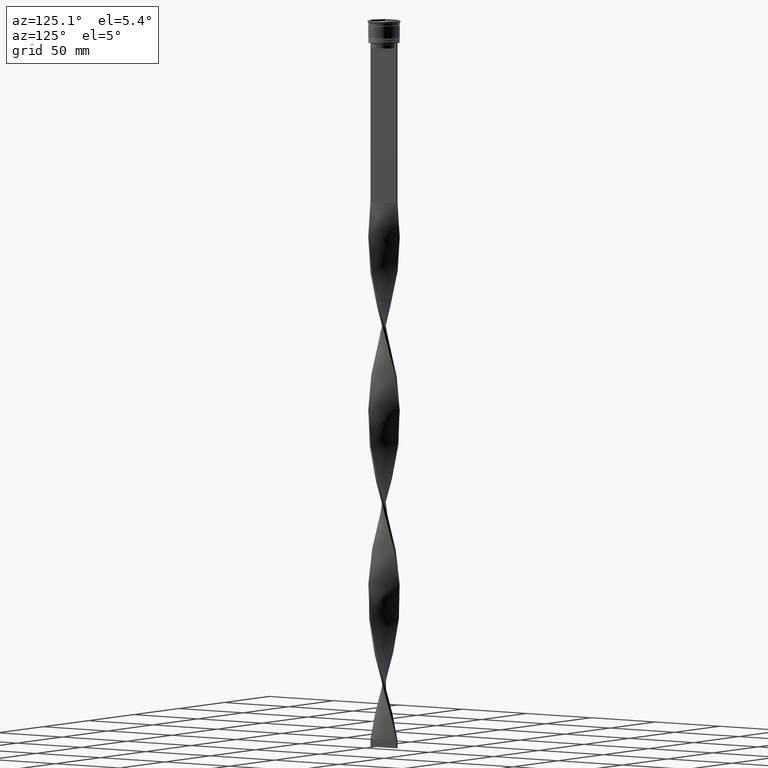
[diagram: clean part render]
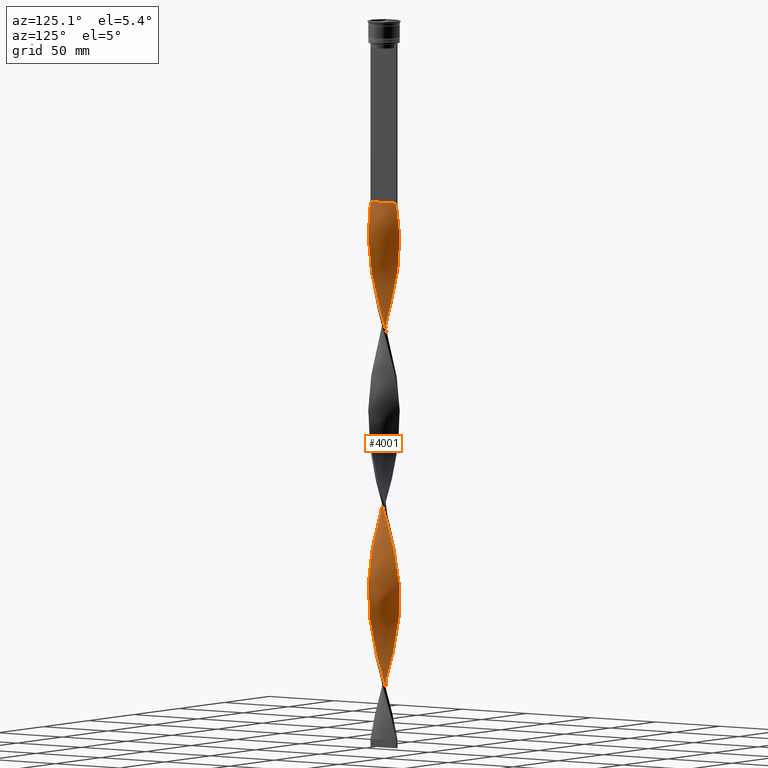
[diagram: same view with one face highlighted and labeled with its STEP entity id]
A machine part, auxiliary view. The second image highlights one B-rep face of the part: STEP entity #4001.
In plain terms, the highlighted face is a freeform B-spline surface patch.
Its self-contained STEP definition (entity closure, byte-faithful):
#9 = CARTESIAN_POINT ( 'NONE',  ( 0.6807823013221528941, 10.00495054751429613, -453.8030303030303116 ) ) ;
#11 = CARTESIAN_POINT ( 'NONE',  ( 9.130662998149981391, 4.208075784551210674, -186.1590909090908781 ) ) ;
#13 = CARTESIAN_POINT ( 'NONE',  ( -2.865814812699130520, -9.636597638877821836, -222.5378787878787250 ) ) ;
#20 = CARTESIAN_POINT ( 'NONE',  ( 2.165514464143552864, 9.791478290104359772, -339.4696969696969973 ) ) ;
#29 = CARTESIAN_POINT ( 'NONE',  ( 8.438854389437562276, 5.464672468518299908, -420.0227272727271952 ) ) ;
#32 = CARTESIAN_POINT ( 'NONE',  ( 3.471926133502976075, 9.407881213296604983, -214.7424242424242209 ) ) ;
#35 = CARTESIAN_POINT ( 'NONE',  ( 8.438854389437555170, -5.464672468518299020, -269.3106060606060623 ) ) ;
#42 = CARTESIAN_POINT ( 'NONE',  ( 10.05364105866909341, -0.03478588441202772746, -290.0984848484848726 ) ) ;
#50 = ORIENTED_EDGE ( 'NONE', *, *, #2847, .F. ) ;
#54 = CARTESIAN_POINT ( 'NONE',  ( -8.784758693793776274, -4.836374126534751738, -303.0909090909091219 ) ) ;
#58 = CARTESIAN_POINT ( 'NONE',  ( 4.836374126534755291, -8.784758693793774498, -131.5909090909090935 ) ) ;
#63 = CARTESIAN_POINT ( 'NONE',  ( -9.791478290104359772, 2.165514464143550644, -396.6363636363636260 ) ) ;
#79 = CARTESIAN_POINT ( 'NONE',  ( -2.799061189350520618, -9.656198271192609539, -331.6742424242423795 ) ) ;
#83 = CARTESIAN_POINT ( 'NONE',  ( -7.066350193083617448, 7.115419520218543958, -375.8484848484848726 ) ) ;
#101 = CARTESIAN_POINT ( 'NONE',  ( 7.575255041002671774, 6.610024179840428893, -196.5530303030303116 ) ) ;
#105 = CARTESIAN_POINT ( 'NONE',  ( -9.656198271192604210, -2.799061189350513512, -414.8257575757575637 ) ) ;
#124 = CARTESIAN_POINT ( 'NONE',  ( -3.471926133502977851, -9.407881213296603207, -329.0757575757575637 ) ) ;
#128 = CARTESIAN_POINT ( 'NONE',  ( -10.05364105866909341, 0.03478588441203076670, -404.4318181818180733 ) ) ;
#148 = CARTESIAN_POINT ( 'NONE',  ( 8.818015941403514191, -4.775468024932593814, -152.3787878787879038 ) ) ;
#151 = CARTESIAN_POINT ( 'NONE',  ( -7.620814860596662577, -6.557445345164568451, -430.4166666666666856 ) ) ;
#163 = CARTESIAN_POINT ( 'NONE',  ( 7.575255041002672662, 6.610024179840429781, -196.5530303030303116 ) ) ;
#181 = CARTESIAN_POINT ( 'NONE',  ( -1.465214115587968990, 9.946358941330910142, -232.9318181818181870 ) ) ;
#207 = CARTESIAN_POINT ( 'NONE',  ( 3.471926133502976075, 9.407881213296604983, -214.7424242424242209 ) ) ;
#218 = CARTESIAN_POINT ( 'NONE',  ( -3.471926133502974299, 9.407881213296597878, -131.5909090909090935 ) ) ;
#224 = CARTESIAN_POINT ( 'NONE',  ( -8.438854389437562276, -5.464672468518299020, -305.6893939393939945 ) ) ;
#235 = CARTESIAN_POINT ( 'NONE',  ( -9.956260036359481091, -1.396350487056333023, -180.9621212121212182 ) ) ;
#244 = CARTESIAN_POINT ( 'NONE',  ( -10.00000000000000533, -0.7499999999999983347, -287.5000000000000568 ) ) ;
#251 = CARTESIAN_POINT ( 'NONE',  ( -7.066350193083617448, 7.115419520218543958, -147.1818181818181870 ) ) ;
#259 = CARTESIAN_POINT ( 'NONE',  ( -7.620814860596662577, -6.557445345164568451, -201.7499999999999716 ) ) ;
#269 = CARTESIAN_POINT ( 'NONE',  ( 9.956260036359488197, -1.396350487056333245, -394.0378787878788103 ) ) ;
#275 = CARTESIAN_POINT ( 'NONE',  ( 9.791478290104370430, 2.165514464143550200, -407.0303030303030027 ) ) ;
#281 = ORIENTED_EDGE ( 'NONE', *, *, #4305, .F. ) ;
#284 = CARTESIAN_POINT ( 'NONE',  ( -9.407881213296597878, -3.471926133502973411, -188.7575757575757507 ) ) ;
#292 = CARTESIAN_POINT ( 'NONE',  ( 9.791478290104370430, 2.165514464143550200, -407.0303030303030027 ) ) ;
#296 = CARTESIAN_POINT ( 'NONE',  ( 5.406144972209748545, 8.476467727406433283, -435.6136363636363171 ) ) ;
#297 = CARTESIAN_POINT ( 'NONE',  ( 9.407881213296599654, 3.471926133502971190, -303.0909090909091219 ) ) ;
#301 = CARTESIAN_POINT ( 'NONE',  ( 4.144791077655436418, -9.159564155400587993, -248.5227272727272521 ) ) ;
#310 = CARTESIAN_POINT ( 'NONE',  ( 7.066350193083622777, 7.115419520218547511, -427.8181818181818130 ) ) ;
#314 = CARTESIAN_POINT ( 'NONE',  ( 6.557445345164574668, 7.620814860596667017, -430.4166666666666856 ) ) ;
#315 = CARTESIAN_POINT ( 'NONE',  ( 9.806229153776046203, 2.097705838203419937, -297.8939393939394336 ) ) ;
#323 = CARTESIAN_POINT ( 'NONE',  ( 9.946358941330901260, -1.465214115587967214, -284.9015151515151842 ) ) ;
#331 = ORIENTED_EDGE ( 'NONE', *, *, #960, .F. ) ;
#333 = CARTESIAN_POINT ( 'NONE',  ( 6.557445345164574668, 7.620814860596667906, -430.4166666666666856 ) ) ;
#336 = CARTESIAN_POINT ( 'NONE',  ( 9.956260036359488197, -1.396350487056333467, -165.3712121212121247 ) ) ;
#339 = CARTESIAN_POINT ( 'NONE',  ( -9.791478290104359772, 2.165514464143550644, -167.9696969696969973 ) ) ;
#340 = CARTESIAN_POINT ( 'NONE',  ( 4.775468024932588484, -8.818015941403508862, -251.1212121212121247 ) ) ;
#346 = CARTESIAN_POINT ( 'NONE',  ( 8.476467727406429731, 5.406144972209740551, -310.8863636363635692 ) ) ;
#349 = VERTEX_POINT ( 'NONE', #4151 ) ;
#358 = CARTESIAN_POINT ( 'NONE',  ( 9.407881213296603207, -3.471926133502977851, -386.2424242424242493 ) ) ;
#360 = CARTESIAN_POINT ( 'NONE',  ( 3.536945298625171041, -9.383630318513906943, -355.0606060606060623 ) ) ;
#365 = CARTESIAN_POINT ( 'NONE',  ( 9.946358941330903036, -1.465214115587967214, -284.9015151515151842 ) ) ;
#370 = CARTESIAN_POINT ( 'NONE',  ( -5.981795158687155833, 8.048641294001546598, -370.6515151515151842 ) ) ;
#382 = CARTESIAN_POINT ( 'NONE',  ( -9.407881213296604983, 3.471926133502976963, -271.9090909090909349 ) ) ;
#386 = CARTESIAN_POINT ( 'NONE',  ( 0.6807823013221493413, -10.00495054751428903, -235.5303030303030312 ) ) ;
#389 = CARTESIAN_POINT ( 'NONE',  ( -4.144791077655435529, 9.159564155400587993, -362.8560606060606233 ) ) ;
#404 = CARTESIAN_POINT ( 'NONE',  ( -8.048641294001550150, 5.981795158687161162, -261.5151515151515582 ) ) ;
#409 = CARTESIAN_POINT ( 'NONE',  ( 9.407881213296603207, -3.471926133502977851, -157.5757575757575921 ) ) ;
#415 = CARTESIAN_POINT ( 'NONE',  ( 7.620814860596663465, 6.557445345164567563, -316.0833333333332575 ) ) ;
#430 = CARTESIAN_POINT ( 'NONE',  ( -0.7499999999999988898, 10.00000000000000533, -230.3333333333333428 ) ) ;
#434 = CARTESIAN_POINT ( 'NONE',  ( 0.7500000000000001110, -10.00000000000000533, -116.0000000000000000 ) ) ;
#451 = CARTESIAN_POINT ( 'NONE',  ( -2.097705838203426598, -9.806229153776049756, -334.2727272727272521 ) ) ;
#455 = CARTESIAN_POINT ( 'NONE',  ( 9.806229153776049756, -2.097705838203426598, -162.7727272727272805 ) ) ;
#473 = CARTESIAN_POINT ( 'NONE',  ( 9.806229153776049756, -2.097705838203426598, -391.4393939393939945 ) ) ;
#479 = CARTESIAN_POINT ( 'NONE',  ( 2.865814812699132297, -9.636597638877828942, -123.7954545454545325 ) ) ;
#483 = CARTESIAN_POINT ( 'NONE',  ( -0.7500000000000014433, -9.999999999999998224, -459.0000000000000000 ) ) ;
#498 = CARTESIAN_POINT ( 'NONE',  ( 4.208075784551211562, -9.130662998149983167, -357.6590909090909918 ) ) ;
#515 = CARTESIAN_POINT ( 'NONE',  ( -7.115419520218547511, 7.066350193083623665, -256.3181818181818130 ) ) ;
#519 = CARTESIAN_POINT ( 'NONE',  ( -4.836374126534751738, -8.784758693793767392, -443.4090909090909349 ) ) ;
#536 = CARTESIAN_POINT ( 'NONE',  ( -9.383630318513908719, -3.536945298625168377, -297.8939393939394336 ) ) ;
#550 = CARTESIAN_POINT ( 'NONE',  ( -10.00495054751428903, -0.6807823013221501185, -178.3636363636364024 ) ) ;
#561 = CARTESIAN_POINT ( 'NONE',  ( 7.066350193083622777, 7.115419520218547511, -199.1515151515151558 ) ) ;
#574 = CARTESIAN_POINT ( 'NONE',  ( -5.406144972209740551, 8.476467727406427954, -139.3863636363636260 ) ) ;
#580 = CARTESIAN_POINT ( 'NONE',  ( 2.165514464143551976, -9.791478290104366877, -349.8636363636363740 ) ) ;
#585 = CARTESIAN_POINT ( 'NONE',  ( -8.476467727406427954, -5.406144972209742328, -196.5530303030303116 ) ) ;
#606 = CARTESIAN_POINT ( 'NONE',  ( 7.575255041002672662, 6.610024179840429781, -425.2196969696969404 ) ) ;
#608 = CARTESIAN_POINT ( 'NONE',  ( 10.00495054751429613, -0.6807823013221522279, -167.9696969696969973 ) ) ;
#613 = CARTESIAN_POINT ( 'NONE',  ( 5.981795158687161162, 8.048641294001550150, -433.0151515151515014 ) ) ;
#622 = CARTESIAN_POINT ( 'NONE',  ( -9.130662998149976062, 4.208075784551208898, -160.1742424242424363 ) ) ;
#638 = CARTESIAN_POINT ( 'NONE',  ( 4.775468024932594702, 8.818015941403514191, -438.2121212121212466 ) ) ;
#639 = CARTESIAN_POINT ( 'NONE',  ( 7.115419520218541294, 7.066350193083619224, -318.6818181818181870 ) ) ;
#645 = CARTESIAN_POINT ( 'NONE',  ( -5.464672468518298132, -8.438854389437555170, -212.1439393939393767 ) ) ;
#654 = CARTESIAN_POINT ( 'NONE',  ( 7.115419520218548399, -7.066350193083622777, -370.6515151515151842 ) ) ;
#656 = CARTESIAN_POINT ( 'NONE',  ( 9.656198271192611315, -2.799061189350517065, -160.1742424242424363 ) ) ;
#660 = CARTESIAN_POINT ( 'NONE',  ( 9.956260036359488197, -1.396350487056333467, -394.0378787878787534 ) ) ;
#661 = CARTESIAN_POINT ( 'NONE',  ( -0.03478588441203140508, -10.05364105866909341, -232.9318181818181870 ) ) ;
#666 = CARTESIAN_POINT ( 'NONE',  ( 9.999999999999998224, -0.7500000000000021094, -287.5000000000000568 ) ) ;
#678 = CARTESIAN_POINT ( 'NONE',  ( 9.946358941330908365, 1.465214115587969879, -175.7651515151515014 ) ) ;
#679 = CARTESIAN_POINT ( 'NONE',  ( 9.636597638877828942, 2.865814812699132741, -409.6287878787878185 ) ) ;
#680 = CARTESIAN_POINT ( 'NONE',  ( 10.00495054751428903, 0.6807823013221486752, -292.6969696969697452 ) ) ;
#689 =( BOUNDED_SURFACE ( )  B_SPLINE_SURFACE ( 1, 2, ( 
 ( #2983, #1026, #1992, #1964, #3345, #3392, #3707, #4072, #2380, #1681, #1638, #4044, #251, #4022, #1261, #3009, #1657, #3371, #1005, #3754, #339, #3055, #2286, #3732, #1353, #978, #3030, #3664, #1708, #2717, #4381, #585, #1942, #4356, #1283, #2643, #4138, #2403, #1398, #1993, #2360, #13, #2021, #1709, #3413, #661, #386, #2763, #2667, #3079, #1027, #1076, #340, #2381, #4403, #2718, #3779, #1372, #2044, #35, #2335, #4073, #2694, #3755, #4117, #365, #4096, #3733, #680, #3393, #315, #3031, #297, #2740, #1658, #1682, #3372, #1332, #639, #4045, #2430, #1307, #711, #3805, #1006, #1053, #2069, #3056, #4428, #3437, #1728, #1354, #735, #2089, #979, #3457, #3010, #3100, #4382, #3708, #83, #2786, #3171, #4161, #3480, #1502, #2494, #2474, #1443, #3894, #4206, #128, #2869, #2171, #3848, #105, #754, #2806, #3574, #1114, #3212, #4243, #3551, #3871, #1094, #3509, #1751, #1159, #4185, #779, #3823, #2111, #2134 ),
 ( #434, #820, #1798, #479, #1839, #1464, #58, #2824, #3128, #1134, #798, #2152, #3529, #3189, #148, #1421, #409, #3914, #455, #1178, #2516, #2535, #1775, #1817, #1482, #2852, #4229, #839, #2191, #2451, #3152, #163, #561, #2931, #3316, #902, #4302, #1872, #207, #4324, #3633, #3972, #1939, #4260, #1541, #181, #1235, #1581, #2281, #1562, #1219, #2595, #880, #4283, #515, #2213, #3295, #3592, #2233, #859, #3250, #2557, #1519, #4349, #3230, #1254, #244, #2909, #2256, #3996, #536, #1894, #1921, #224, #2577, #1605, #2976, #2888, #1278, #2638, #2949, #924, #3956, #3612, #1196, #3271, #3937, #2616, #4018, #3659, #580, #948, #2304, #498, #1856, #3430, #4111, #1324, #654, #2660, #1988, #1069, #3025, #703, #358, #1045, #1348, #269, #999, #3677, #3074, #3367, #292, #1302, #4040, #2688, #3094, #29, #3728, #606, #310, #333, #1653, #1960, #4422, #1701, #3340, #3774, #971, #1722, #9, #2755, #3750 ) ),
 .UNSPECIFIED., .F., .F., .F. ) 
 B_SPLINE_SURFACE_WITH_KNOTS ( ( 2, 2 ),
 ( 3, 2, 2, 2, 2, 2, 2, 2, 2, 2, 2, 2, 2, 2, 2, 2, 2, 2, 2, 2, 2, 2, 2, 2, 2, 2, 2, 2, 2, 2, 2, 2, 2, 2, 2, 2, 2, 2, 2, 2, 2, 2, 2, 2, 2, 2, 2, 2, 2, 2, 2, 2, 2, 2, 2, 2, 2, 2, 2, 2, 2, 2, 2, 2, 2, 2, 3 ),
 ( 0.000000000000000000, 1.000000000000000000 ),
 ( 0.000000000000000000, 0.01136363636363636395, 0.02272727272727272790, 0.03409090909090908839, 0.04545454545454545581, 0.05681818181818181629, 0.06818181818181817677, 0.07954545454545454419, 0.09090909090909091161, 0.1022727272727272790, 0.1136363636363636326, 0.1250000000000000000, 0.1363636363636363535, 0.1477272727272727348, 0.1590909090909090884, 0.1704545454545454419, 0.1818181818181818232, 0.1931818181818181768, 0.2045454545454545581, 0.2159090909090909116, 0.2272727272727272652, 0.2386363636363636465, 0.2500000000000000000, 0.2613636363636363535, 0.2727272727272727071, 0.2840909090909091161, 0.2954545454545454697, 0.3068181818181818232, 0.3181818181818181768, 0.3295454545454545303, 0.3409090909090908839, 0.3522727272727272929, 0.3636363636363636465, 0.3750000000000000000, 0.3863636363636363535, 0.3977272727272727071, 0.4090909090909091161, 0.4204545454545454697, 0.4318181818181818232, 0.4431818181818181768, 0.4545454545454545303, 0.4659090909090908839, 0.4772727272727272929, 0.4886363636363636465, 0.5000000000000000000, 0.5113636363636363535, 0.5227272727272727071, 0.5340909090909090606, 0.5454545454545454142, 0.5568181818181817677, 0.5681818181818182323, 0.5795454545454545858, 0.5909090909090909394, 0.6022727272727272929, 0.6136363636363636465, 0.6250000000000000000, 0.6363636363636363535, 0.6477272727272727071, 0.6590909090909090606, 0.6704545454545454142, 0.6818181818181817677, 0.6931818181818182323, 0.7045454545454545858, 0.7159090909090909394, 0.7272727272727272929, 0.7386363636363636465, 0.7500000000000000000 ),
 .UNSPECIFIED. ) 
 GEOMETRIC_REPRESENTATION_ITEM ( )  RATIONAL_B_SPLINE_SURFACE ( (
 ( 1.000000000000000000, 0.9974521146102535152, 1.000000000000000000, 0.9974521146102535152, 1.000000000000000000, 0.9974521146102535152, 1.000000000000000000, 0.9974521146102535152, 1.000000000000000000, 0.9974521146102535152, 1.000000000000000000, 0.9974521146102535152, 1.000000000000000000, 0.9974521146102535152, 1.000000000000000000, 0.9974521146102535152, 1.000000000000000000, 0.9974521146102535152, 1.000000000000000000, 0.9974521146102535152, 1.000000000000000000, 0.9974521146102535152, 1.000000000000000000, 0.9974521146102535152, 1.000000000000000000, 0.9974521146102535152, 1.000000000000000000, 0.9974521146102535152, 1.000000000000000000, 0.9974521146102535152, 1.000000000000000000, 0.9974521146102535152, 1.000000000000000000, 0.9974521146102535152, 1.000000000000000000, 0.9974521146102535152, 1.000000000000000000, 0.9974521146102535152, 1.000000000000000000, 0.9974521146102535152, 1.000000000000000000, 0.9974521146102535152, 1.000000000000000000, 0.9974521146102535152, 1.000000000000000000, 0.9974521146102535152, 1.000000000000000000, 0.9974521146102535152, 1.000000000000000000, 0.9974521146102535152, 1.000000000000000000, 0.9974521146102535152, 1.000000000000000000, 0.9974521146102535152, 1.000000000000000000, 0.9974521146102535152, 1.000000000000000000, 0.9974521146102535152, 1.000000000000000000, 0.9974521146102535152, 1.000000000000000000, 0.9974521146102535152, 1.000000000000000000, 0.9974521146102535152, 1.000000000000000000, 0.9974521146102535152, 1.000000000000000000, 0.9974521146102535152, 1.000000000000000000, 0.9974521146102535152, 1.000000000000000000, 0.9974521146102535152, 1.000000000000000000, 0.9974521146102535152, 1.000000000000000000, 0.9974521146102535152, 1.000000000000000000, 0.9974521146102535152, 1.000000000000000000, 0.9974521146102535152, 1.000000000000000000, 0.9974521146102535152, 1.000000000000000000, 0.9974521146102535152, 1.000000000000000000, 0.9974521146102535152, 1.000000000000000000, 0.9974521146102535152, 1.000000000000000000, 0.9974521146102535152, 1.000000000000000000, 0.9974521146102535152, 1.000000000000000000, 0.9974521146102535152, 1.000000000000000000, 0.9974521146102535152, 1.000000000000000000, 0.9974521146102535152, 1.000000000000000000, 0.9974521146102535152, 1.000000000000000000, 0.9974521146102535152, 1.000000000000000000, 0.9974521146102535152, 1.000000000000000000, 0.9974521146102535152, 1.000000000000000000, 0.9974521146102535152, 1.000000000000000000, 0.9974521146102535152, 1.000000000000000000, 0.9974521146102535152, 1.000000000000000000, 0.9974521146102535152, 1.000000000000000000, 0.9974521146102535152, 1.000000000000000000, 0.9974521146102535152, 1.000000000000000000, 0.9974521146102535152, 1.000000000000000000, 0.9974521146102535152, 1.000000000000000000, 0.9974521146102535152, 1.000000000000000000, 0.9974521146102535152, 1.000000000000000000, 0.9974521146102535152, 1.000000000000000000, 0.9974521146102535152, 1.000000000000000000, 0.9974521146102535152, 1.000000000000000000),
 ( 1.000000000000000000, 0.9974521146102535152, 1.000000000000000000, 0.9974521146102535152, 1.000000000000000000, 0.9974521146102535152, 1.000000000000000000, 0.9974521146102535152, 1.000000000000000000, 0.9974521146102535152, 1.000000000000000000, 0.9974521146102535152, 1.000000000000000000, 0.9974521146102535152, 1.000000000000000000, 0.9974521146102535152, 1.000000000000000000, 0.9974521146102535152, 1.000000000000000000, 0.9974521146102535152, 1.000000000000000000, 0.9974521146102535152, 1.000000000000000000, 0.9974521146102535152, 1.000000000000000000, 0.9974521146102535152, 1.000000000000000000, 0.9974521146102535152, 1.000000000000000000, 0.9974521146102535152, 1.000000000000000000, 0.9974521146102535152, 1.000000000000000000, 0.9974521146102535152, 1.000000000000000000, 0.9974521146102535152, 1.000000000000000000, 0.9974521146102535152, 1.000000000000000000, 0.9974521146102535152, 1.000000000000000000, 0.9974521146102535152, 1.000000000000000000, 0.9974521146102535152, 1.000000000000000000, 0.9974521146102535152, 1.000000000000000000, 0.9974521146102535152, 1.000000000000000000, 0.9974521146102535152, 1.000000000000000000, 0.9974521146102535152, 1.000000000000000000, 0.9974521146102535152, 1.000000000000000000, 0.9974521146102535152, 1.000000000000000000, 0.9974521146102535152, 1.000000000000000000, 0.9974521146102535152, 1.000000000000000000, 0.9974521146102535152, 1.000000000000000000, 0.9974521146102535152, 1.000000000000000000, 0.9974521146102535152, 1.000000000000000000, 0.9974521146102535152, 1.000000000000000000, 0.9974521146102535152, 1.000000000000000000, 0.9974521146102535152, 1.000000000000000000, 0.9974521146102535152, 1.000000000000000000, 0.9974521146102535152, 1.000000000000000000, 0.9974521146102535152, 1.000000000000000000, 0.9974521146102535152, 1.000000000000000000, 0.9974521146102535152, 1.000000000000000000, 0.9974521146102535152, 1.000000000000000000, 0.9974521146102535152, 1.000000000000000000, 0.9974521146102535152, 1.000000000000000000, 0.9974521146102535152, 1.000000000000000000, 0.9974521146102535152, 1.000000000000000000, 0.9974521146102535152, 1.000000000000000000, 0.9974521146102535152, 1.000000000000000000, 0.9974521146102535152, 1.000000000000000000, 0.9974521146102535152, 1.000000000000000000, 0.9974521146102535152, 1.000000000000000000, 0.9974521146102535152, 1.000000000000000000, 0.9974521146102535152, 1.000000000000000000, 0.9974521146102535152, 1.000000000000000000, 0.9974521146102535152, 1.000000000000000000, 0.9974521146102535152, 1.000000000000000000, 0.9974521146102535152, 1.000000000000000000, 0.9974521146102535152, 1.000000000000000000, 0.9974521146102535152, 1.000000000000000000, 0.9974521146102535152, 1.000000000000000000, 0.9974521146102535152, 1.000000000000000000, 0.9974521146102535152, 1.000000000000000000, 0.9974521146102535152, 1.000000000000000000, 0.9974521146102535152, 1.000000000000000000, 0.9974521146102535152, 1.000000000000000000, 0.9974521146102535152, 1.000000000000000000) ) ) 
 REPRESENTATION_ITEM ( '' )  SURFACE ( )  );
#692 = CARTESIAN_POINT ( 'NONE',  ( 9.130662998149976062, -4.208075784551211562, -274.5075757575757507 ) ) ;
#703 = CARTESIAN_POINT ( 'NONE',  ( 9.159564155400593322, -4.144791077655439970, -383.6439393939393767 ) ) ;
#705 = CARTESIAN_POINT ( 'NONE',  ( -9.791478290104370430, -2.165514464143549311, -292.6969696969697452 ) ) ;
#711 = CARTESIAN_POINT ( 'NONE',  ( 4.836374126534752627, 8.784758693793767392, -329.0757575757575637 ) ) ;
#719 = CARTESIAN_POINT ( 'NONE',  ( 4.836374126534752627, 8.784758693793767392, -329.0757575757575637 ) ) ;
#731 = CARTESIAN_POINT ( 'NONE',  ( -1.465214115587968990, 9.946358941330908365, -232.9318181818181870 ) ) ;
#732 = LINE ( 'NONE', #752, #899 ) ;
#735 = CARTESIAN_POINT ( 'NONE',  ( -2.097705838203423490, 9.806229153776044427, -355.0606060606060623 ) ) ;
#738 = CARTESIAN_POINT ( 'NONE',  ( -8.007054715220110808, 6.037348324179362180, -381.0454545454545610 ) ) ;
#751 = CARTESIAN_POINT ( 'NONE',  ( 5.981795158687161162, 8.048641294001550150, -204.3484848484848726 ) ) ;
#752 = CARTESIAN_POINT ( 'NONE',  ( 0.7500000000000001110, -10.00000000000000533, -116.0000000000000000 ) ) ;
#754 = CARTESIAN_POINT ( 'NONE',  ( -9.407881213296597878, -3.471926133502973411, -417.4242424242424363 ) ) ;
#758 = CARTESIAN_POINT ( 'NONE',  ( -10.05364105866909341, 0.03478588441203087078, -404.4318181818181301 ) ) ;
#776 = CARTESIAN_POINT ( 'NONE',  ( 0.03478588441203162712, -10.05364105866910052, -342.0681818181818130 ) ) ;
#779 = CARTESIAN_POINT ( 'NONE',  ( -2.865814812699130520, -9.636597638877821836, -451.2045454545454959 ) ) ;
#795 = CARTESIAN_POINT ( 'NONE',  ( -9.383630318513908719, -3.536945298625168377, -297.8939393939394336 ) ) ;
#798 = CARTESIAN_POINT ( 'NONE',  ( 7.115419520218548399, -7.066350193083622777, -141.9848484848484986 ) ) ;
#805 = CARTESIAN_POINT ( 'NONE',  ( -5.464672468518298132, -8.438854389437555170, -440.8106060606060055 ) ) ;
#817 = CARTESIAN_POINT ( 'NONE',  ( 9.159564155400593322, -4.144791077655439082, -383.6439393939393767 ) ) ;
#820 = CARTESIAN_POINT ( 'NONE',  ( 1.465214115587970545, -9.946358941330910142, -118.5984848484848442 ) ) ;
#839 = CARTESIAN_POINT ( 'NONE',  ( 9.130662998149983167, 4.208075784551211562, -186.1590909090908781 ) ) ;
#859 = CARTESIAN_POINT ( 'NONE',  ( -9.159564155400591545, 4.144791077655442635, -269.3106060606060623 ) ) ;
#880 = CARTESIAN_POINT ( 'NONE',  ( -6.037348324179364845, 8.007054715220117913, -251.1212121212121247 ) ) ;
#891 = CARTESIAN_POINT ( 'NONE',  ( -2.165514464143551088, -9.791478290104359772, -225.1363636363636260 ) ) ;
#899 = VECTOR ( 'NONE', #3820, 1000.000000000000000 ) ;
#902 = CARTESIAN_POINT ( 'NONE',  ( 5.406144972209748545, 8.476467727406433283, -206.9469696969697168 ) ) ;
#914 = CARTESIAN_POINT ( 'NONE',  ( -9.383630318513899837, 3.536945298625170153, -162.7727272727272805 ) ) ;
#924 = CARTESIAN_POINT ( 'NONE',  ( -4.144791077655442635, -9.159564155400591545, -326.4772727272727479 ) ) ;
#926 = CARTESIAN_POINT ( 'NONE',  ( 8.438854389437562276, 5.464672468518299908, -191.3560606060605949 ) ) ;
#936 = CARTESIAN_POINT ( 'NONE',  ( -1.465214115587971211, -9.946358941330901260, -227.7348484848484702 ) ) ;
#948 = CARTESIAN_POINT ( 'NONE',  ( 2.865814812699132297, -9.636597638877828942, -352.4621212121211329 ) ) ;
#952 = CARTESIAN_POINT ( 'NONE',  ( 10.00495054751429613, -0.6807823013221522279, -396.6363636363636260 ) ) ;
#960 = EDGE_CURVE ( 'NONE', #1575, #1698, #3649, .T. ) ;
#962 = CARTESIAN_POINT ( 'NONE',  ( -9.806229153776044427, -2.097705838203423490, -183.5606060606060908 ) ) ;
#971 = CARTESIAN_POINT ( 'NONE',  ( 2.097705838203425266, 9.806229153776049756, -448.6060606060606233 ) ) ;
#978 = CARTESIAN_POINT ( 'NONE',  ( -9.956260036359481091, -1.396350487056332801, -180.9621212121212182 ) ) ;
#979 = CARTESIAN_POINT ( 'NONE',  ( -3.471926133502974299, 9.407881213296597878, -360.2575757575757507 ) ) ;
#986 = CARTESIAN_POINT ( 'NONE',  ( -0.6807823013221514508, 10.00495054751428903, -121.1969696969697026 ) ) ;
#999 = CARTESIAN_POINT ( 'NONE',  ( 10.00495054751429613, -0.6807823013221522279, -396.6363636363636260 ) ) ;
#1005 = CARTESIAN_POINT ( 'NONE',  ( -9.383630318513899837, 3.536945298625170153, -162.7727272727272805 ) ) ;
#1006 = CARTESIAN_POINT ( 'NONE',  ( 3.536945298625170153, 9.383630318513899837, -334.2727272727272521 ) ) ;
#1012 = CARTESIAN_POINT ( 'NONE',  ( -9.159564155400586216, -4.144791077655436418, -420.0227272727271952 ) ) ;
#1025 = CARTESIAN_POINT ( 'NONE',  ( 10.00000000000000533, 0.7499999999999994449, -173.1666666666666856 ) ) ;
#1026 = CARTESIAN_POINT ( 'NONE',  ( 0.03478588441202978832, 10.05364105866909341, -118.5984848484848442 ) ) ;
#1027 = CARTESIAN_POINT ( 'NONE',  ( 3.471926133502975187, -9.407881213296597878, -245.9242424242424363 ) ) ;
#1031 = CARTESIAN_POINT ( 'NONE',  ( -0.7499999999999988898, 10.00000000000000533, -459.0000000000000000 ) ) ;
#1032 = CARTESIAN_POINT ( 'NONE',  ( -9.806229153776044427, -2.097705838203423490, -412.2272727272727479 ) ) ;
#1045 = CARTESIAN_POINT ( 'NONE',  ( 9.656198271192611315, -2.799061189350517065, -388.8409090909090651 ) ) ;
#1047 = CARTESIAN_POINT ( 'NONE',  ( 2.165514464143551976, -9.791478290104366877, -349.8636363636363740 ) ) ;
#1052 = CARTESIAN_POINT ( 'NONE',  ( 0.7500000000000002220, 9.999999999999998224, -116.0000000000000000 ) ) ;
#1053 = CARTESIAN_POINT ( 'NONE',  ( 2.865814812699136294, 9.636597638877821836, -336.8712121212120110 ) ) ;
#1058 = CARTESIAN_POINT ( 'NONE',  ( 8.818015941403510638, 4.775468024932583155, -308.2878787878788103 ) ) ;
#1069 = CARTESIAN_POINT ( 'NONE',  ( 8.476467727406435060, -5.406144972209745880, -378.4469696969697452 ) ) ;
#1071 = CARTESIAN_POINT ( 'NONE',  ( -10.05364105866910052, -0.03478588441203238346, -284.9015151515151842 ) ) ;
#1076 = CARTESIAN_POINT ( 'NONE',  ( 4.144791077655436418, -9.159564155400587993, -248.5227272727272521 ) ) ;
#1080 = CARTESIAN_POINT ( 'NONE',  ( 0.03478588441202989240, 10.05364105866909341, -347.2651515151514445 ) ) ;
#1091 = CARTESIAN_POINT ( 'NONE',  ( -7.115419520218547511, 7.066350193083623665, -256.3181818181818130 ) ) ;
#1094 = CARTESIAN_POINT ( 'NONE',  ( -6.037348324179363068, -8.007054715220110808, -438.2121212121212466 ) ) ;
#1098 = CARTESIAN_POINT ( 'NONE',  ( 6.610024179840426228, 7.575255041002662892, -321.2803030303030027 ) ) ;
#1110 = CARTESIAN_POINT ( 'NONE',  ( 2.799061189350515289, 9.656198271192613092, -217.3409090909090651 ) ) ;
#1114 = CARTESIAN_POINT ( 'NONE',  ( -8.476467727406427954, -5.406144972209742328, -425.2196969696969404 ) ) ;
#1131 = CARTESIAN_POINT ( 'NONE',  ( -4.836374126534756179, 8.784758693793772721, -245.9242424242424363 ) ) ;
#1134 = CARTESIAN_POINT ( 'NONE',  ( 6.610024179840428893, -7.575255041002672662, -139.3863636363635976 ) ) ;
#1155 = CARTESIAN_POINT ( 'NONE',  ( 8.818015941403514191, -4.775468024932593814, -381.0454545454545610 ) ) ;
#1159 = CARTESIAN_POINT ( 'NONE',  ( -4.208075784551208010, -9.130662998149977838, -446.0075757575756938 ) ) ;
#1164 = CARTESIAN_POINT ( 'NONE',  ( -2.165514464143551088, -9.791478290104359772, -453.8030303030303116 ) ) ;
#1178 = CARTESIAN_POINT ( 'NONE',  ( 9.956260036359488197, -1.396350487056333245, -165.3712121212120962 ) ) ;
#1196 = CARTESIAN_POINT ( 'NONE',  ( -2.097705838203426598, -9.806229153776049756, -334.2727272727272521 ) ) ;
#1219 = CARTESIAN_POINT ( 'NONE',  ( -4.836374126534756179, 8.784758693793772721, -245.9242424242424363 ) ) ;
#1227 = CARTESIAN_POINT ( 'NONE',  ( -8.784758693793767392, 4.836374126534752627, -157.5757575757575921 ) ) ;
#1235 = CARTESIAN_POINT ( 'NONE',  ( -2.165514464143549311, 9.791478290104370430, -235.5303030303030312 ) ) ;
#1244 = CARTESIAN_POINT ( 'NONE',  ( 5.981795158687154945, -8.048641294001546598, -256.3181818181818130 ) ) ;
#1254 = CARTESIAN_POINT ( 'NONE',  ( -10.05364105866910052, -0.03478588441203238346, -284.9015151515151842 ) ) ;
#1261 = CARTESIAN_POINT ( 'NONE',  ( -8.007054715220110808, 6.037348324179362180, -152.3787878787879038 ) ) ;
#1268 = CARTESIAN_POINT ( 'NONE',  ( -8.048641294001546598, -5.981795158687154945, -199.1515151515151558 ) ) ;
#1278 = CARTESIAN_POINT ( 'NONE',  ( -5.981795158687158498, -8.048641294001550150, -318.6818181818181870 ) ) ;
#1283 = CARTESIAN_POINT ( 'NONE',  ( -7.115419520218544847, -7.066350193083616560, -204.3484848484848726 ) ) ;
#1289 = CARTESIAN_POINT ( 'NONE',  ( -3.536945298625169265, -9.383630318513899837, -219.9393939393939377 ) ) ;
#1302 = CARTESIAN_POINT ( 'NONE',  ( 9.636597638877828942, 2.865814812699132741, -409.6287878787878185 ) ) ;
#1304 = CARTESIAN_POINT ( 'NONE',  ( 7.620814860596667906, -6.557445345164574668, -144.5833333333333428 ) ) ;
#1305 = CARTESIAN_POINT ( 'NONE',  ( -0.7499999999999988898, 10.00000000000000533, -459.0000000000000000 ) ) ;
#1306 = CARTESIAN_POINT ( 'NONE',  ( 9.130662998149981391, 4.208075784551210674, -414.8257575757575637 ) ) ;
#1307 = CARTESIAN_POINT ( 'NONE',  ( 5.464672468518299908, 8.438854389437555170, -326.4772727272727479 ) ) ;
#1315 = CARTESIAN_POINT ( 'NONE',  ( -8.476467727406427954, -5.406144972209742328, -196.5530303030303116 ) ) ;
#1324 = CARTESIAN_POINT ( 'NONE',  ( 6.610024179840428893, -7.575255041002672662, -368.0530303030302548 ) ) ;
#1327 = CARTESIAN_POINT ( 'NONE',  ( 2.865814812699132297, -9.636597638877828942, -123.7954545454545467 ) ) ;
#1331 = CARTESIAN_POINT ( 'NONE',  ( 0.6807823013221528941, 10.00495054751429613, -453.8030303030303116 ) ) ;
#1332 = CARTESIAN_POINT ( 'NONE',  ( 7.620814860596664353, 6.557445345164567563, -316.0833333333332575 ) ) ;
#1338 = CARTESIAN_POINT ( 'NONE',  ( -9.407881213296597878, -3.471926133502973411, -417.4242424242424363 ) ) ;
#1348 = CARTESIAN_POINT ( 'NONE',  ( 9.806229153776049756, -2.097705838203426598, -391.4393939393939945 ) ) ;
#1353 = CARTESIAN_POINT ( 'NONE',  ( -10.00495054751428903, -0.6807823013221502295, -178.3636363636364024 ) ) ;
#1354 = CARTESIAN_POINT ( 'NONE',  ( -1.396350487056332357, 9.956260036359481091, -352.4621212121211329 ) ) ;
#1358 = CARTESIAN_POINT ( 'NONE',  ( -0.6807823013221514508, 10.00495054751428903, -349.8636363636363740 ) ) ;
#1370 = CARTESIAN_POINT ( 'NONE',  ( 8.784758693793774498, 4.836374126534754403, -188.7575757575757507 ) ) ;
#1372 = CARTESIAN_POINT ( 'NONE',  ( 7.575255041002665557, -6.610024179840427117, -264.1136363636363171 ) ) ;
#1379 = CARTESIAN_POINT ( 'NONE',  ( -1.396350487056332579, 9.956260036359481091, -352.4621212121211897 ) ) ;
#1392 = CARTESIAN_POINT ( 'NONE',  ( 2.097705838203425266, 9.806229153776049756, -219.9393939393939377 ) ) ;
#1398 = CARTESIAN_POINT ( 'NONE',  ( -4.836374126534751738, -8.784758693793767392, -214.7424242424242209 ) ) ;
#1403 = CARTESIAN_POINT ( 'NONE',  ( 8.007054715220114360, -6.037348324179360404, -266.7121212121212466 ) ) ;
#1416 = CARTESIAN_POINT ( 'NONE',  ( -8.438854389437562276, -5.464672468518299020, -305.6893939393939945 ) ) ;
#1421 = CARTESIAN_POINT ( 'NONE',  ( 9.159564155400593322, -4.144791077655439970, -154.9772727272727195 ) ) ;
#1427 = CARTESIAN_POINT ( 'NONE',  ( -9.946358941330901260, 1.465214115587970545, -399.2348484848484418 ) ) ;
#1439 = CARTESIAN_POINT ( 'NONE',  ( -4.208075784551211562, 9.130662998149981391, -243.3257575757575637 ) ) ;
#1443 = CARTESIAN_POINT ( 'NONE',  ( -9.791478290104359772, 2.165514464143550644, -396.6363636363636260 ) ) ;
#1460 = CARTESIAN_POINT ( 'NONE',  ( -8.007054715220119689, -6.037348324179360404, -308.2878787878788103 ) ) ;
#1464 = CARTESIAN_POINT ( 'NONE',  ( 4.208075784551211562, -9.130662998149983167, -128.9924242424241925 ) ) ;
#1479 = CARTESIAN_POINT ( 'NONE',  ( 8.048641294001550150, -5.981795158687160274, -375.8484848484848726 ) ) ;
#1482 = CARTESIAN_POINT ( 'NONE',  ( 9.791478290104370430, 2.165514464143550200, -178.3636363636364024 ) ) ;
#1502 = CARTESIAN_POINT ( 'NONE',  ( -9.130662998149976062, 4.208075784551209786, -388.8409090909090651 ) ) ;
#1519 = CARTESIAN_POINT ( 'NONE',  ( -9.806229153776049756, 2.097705838203426154, -277.1060606060606233 ) ) ;
#1526 = CARTESIAN_POINT ( 'NONE',  ( -1.465214115587971211, -9.946358941330901260, -456.4015151515151274 ) ) ;
#1541 = CARTESIAN_POINT ( 'NONE',  ( -0.7499999999999988898, 10.00000000000000533, -230.3333333333333428 ) ) ;
#1562 = CARTESIAN_POINT ( 'NONE',  ( -4.208075784551212450, 9.130662998149983167, -243.3257575757575637 ) ) ;
#1573 = CARTESIAN_POINT ( 'NONE',  ( 3.471926133502975187, -9.407881213296597878, -245.9242424242424363 ) ) ;
#1575 = VERTEX_POINT ( 'NONE', #1876 ) ;
#1581 = CARTESIAN_POINT ( 'NONE',  ( -2.865814812699129632, 9.636597638877828942, -238.1287878787878469 ) ) ;
#1584 = CARTESIAN_POINT ( 'NONE',  ( -0.7500000000000014433, -9.999999999999998224, -459.0000000000000000 ) ) ;
#1592 = CARTESIAN_POINT ( 'NONE',  ( -9.656198271192604210, -2.799061189350513512, -186.1590909090908781 ) ) ;
#1605 = CARTESIAN_POINT ( 'NONE',  ( -7.575255041002672662, -6.610024179840428893, -310.8863636363635692 ) ) ;
#1611 = CARTESIAN_POINT ( 'NONE',  ( 9.946358941330908365, 1.465214115587969879, -404.4318181818181301 ) ) ;
#1620 = CARTESIAN_POINT ( 'NONE',  ( -0.7500000000000014433, -9.999999999999998224, -230.3333333333333428 ) ) ;
#1638 = CARTESIAN_POINT ( 'NONE',  ( -5.981795158687155833, 8.048641294001546598, -141.9848484848484986 ) ) ;
#1644 = CARTESIAN_POINT ( 'NONE',  ( -1.396350487056332579, 9.956260036359481091, -123.7954545454545467 ) ) ;
#1653 = CARTESIAN_POINT ( 'NONE',  ( 5.981795158687161162, 8.048641294001550150, -433.0151515151515014 ) ) ;
#1657 = CARTESIAN_POINT ( 'NONE',  ( -8.784758693793767392, 4.836374126534752627, -157.5757575757575921 ) ) ;
#1658 = CARTESIAN_POINT ( 'NONE',  ( 8.818015941403510638, 4.775468024932583155, -308.2878787878788103 ) ) ;
#1664 = CARTESIAN_POINT ( 'NONE',  ( 5.406144972209740551, -8.476467727406427954, -253.7196969696969973 ) ) ;
#1676 = CARTESIAN_POINT ( 'NONE',  ( 8.048641294001550150, -5.981795158687160274, -147.1818181818181870 ) ) ;
#1681 = CARTESIAN_POINT ( 'NONE',  ( -5.406144972209740551, 8.476467727406427954, -139.3863636363635976 ) ) ;
#1682 = CARTESIAN_POINT ( 'NONE',  ( 8.476467727406429731, 5.406144972209740551, -310.8863636363635692 ) ) ;
#1689 = CARTESIAN_POINT ( 'NONE',  ( 0.7500000000000002220, 9.999999999999998224, -344.6666666666666856 ) ) ;
#1698 = VERTEX_POINT ( 'NONE', #1031 ) ;
#1701 = CARTESIAN_POINT ( 'NONE',  ( 4.144791077655441747, 9.159564155400591545, -440.8106060606060055 ) ) ;
#1703 = CARTESIAN_POINT ( 'NONE',  ( 9.636597638877828942, 2.865814812699132741, -180.9621212121212182 ) ) ;
#1708 = CARTESIAN_POINT ( 'NONE',  ( -9.407881213296597878, -3.471926133502973411, -188.7575757575757507 ) ) ;
#1709 = CARTESIAN_POINT ( 'NONE',  ( -1.465214115587970989, -9.946358941330903036, -227.7348484848484702 ) ) ;
#1713 = CARTESIAN_POINT ( 'NONE',  ( 4.208075784551212450, 9.130662998149976062, -331.6742424242423795 ) ) ;
#1722 = CARTESIAN_POINT ( 'NONE',  ( 1.396350487056334355, 9.956260036359488197, -451.2045454545454959 ) ) ;
#1724 = CARTESIAN_POINT ( 'NONE',  ( 4.208075784551210674, -9.130662998149981391, -357.6590909090909349 ) ) ;
#1728 = CARTESIAN_POINT ( 'NONE',  ( -0.6807823013221515618, 10.00495054751428903, -349.8636363636363740 ) ) ;
#1733 = CARTESIAN_POINT ( 'NONE',  ( -9.130662998149976062, 4.208075784551208898, -388.8409090909090651 ) ) ;
#1747 = CARTESIAN_POINT ( 'NONE',  ( -10.00495054751429613, 0.6807823013221533381, -282.3030303030303116 ) ) ;
#1751 = CARTESIAN_POINT ( 'NONE',  ( -4.836374126534751738, -8.784758693793767392, -443.4090909090909349 ) ) ;
#1757 = CARTESIAN_POINT ( 'NONE',  ( 5.464672468518299908, 8.438854389437555170, -326.4772727272727479 ) ) ;
#1769 = CARTESIAN_POINT ( 'NONE',  ( -4.775468024932591149, -8.818015941403515967, -323.8787878787878753 ) ) ;
#1775 = CARTESIAN_POINT ( 'NONE',  ( 10.00000000000000533, 0.7499999999999994449, -173.1666666666666856 ) ) ;
#1782 = CARTESIAN_POINT ( 'NONE',  ( -9.383630318513899837, 3.536945298625170153, -391.4393939393939945 ) ) ;
#1794 = CARTESIAN_POINT ( 'NONE',  ( -5.464672468518299908, 8.438854389437562276, -248.5227272727272521 ) ) ;
#1798 = CARTESIAN_POINT ( 'NONE',  ( 2.165514464143551976, -9.791478290104366877, -121.1969696969697026 ) ) ;
#1814 = CARTESIAN_POINT ( 'NONE',  ( -6.037348324179364845, 8.007054715220117913, -251.1212121212121247 ) ) ;
#1817 = CARTESIAN_POINT ( 'NONE',  ( 9.946358941330910142, 1.465214115587969879, -175.7651515151515014 ) ) ;
#1836 = CARTESIAN_POINT ( 'NONE',  ( 6.610024179840428005, -7.575255041002671774, -368.0530303030302548 ) ) ;
#1839 = CARTESIAN_POINT ( 'NONE',  ( 3.536945298625171041, -9.383630318513906943, -126.3939393939393909 ) ) ;
#1845 = CARTESIAN_POINT ( 'NONE',  ( -6.610024179840426228, -7.575255041002664669, -435.6136363636363171 ) ) ;
#1856 = CARTESIAN_POINT ( 'NONE',  ( 4.836374126534755291, -8.784758693793774498, -360.2575757575757507 ) ) ;
#1872 = CARTESIAN_POINT ( 'NONE',  ( 4.144791077655441747, 9.159564155400591545, -212.1439393939393767 ) ) ;
#1876 = CARTESIAN_POINT ( 'NONE',  ( -0.7500000000000014433, -9.999999999999998224, -459.0000000000000000 ) ) ;
#1894 = CARTESIAN_POINT ( 'NONE',  ( -9.130662998149983167, -4.208075784551211562, -300.4924242424241925 ) ) ;
#1909 = CARTESIAN_POINT ( 'NONE',  ( -10.05364105866909341, 0.03478588441203087078, -175.7651515151515014 ) ) ;
#1921 = CARTESIAN_POINT ( 'NONE',  ( -8.784758693793776274, -4.836374126534751738, -303.0909090909091219 ) ) ;
#1932 = CARTESIAN_POINT ( 'NONE',  ( -9.946358941330901260, 1.465214115587970545, -170.5681818181818414 ) ) ;
#1939 = CARTESIAN_POINT ( 'NONE',  ( 0.6807823013221528941, 10.00495054751429613, -225.1363636363636260 ) ) ;
#1941 = CARTESIAN_POINT ( 'NONE',  ( 5.464672468518299020, -8.438854389437562276, -134.1893939393939377 ) ) ;
#1942 = CARTESIAN_POINT ( 'NONE',  ( -8.048641294001546598, -5.981795158687154945, -199.1515151515151558 ) ) ;
#1950 = CARTESIAN_POINT ( 'NONE',  ( -7.115419520218544847, -7.066350193083616560, -204.3484848484848726 ) ) ;
#1960 = CARTESIAN_POINT ( 'NONE',  ( 5.406144972209748545, 8.476467727406433283, -435.6136363636363171 ) ) ;
#1964 = CARTESIAN_POINT ( 'NONE',  ( -1.396350487056332357, 9.956260036359481091, -123.7954545454545325 ) ) ;
#1974 = CARTESIAN_POINT ( 'NONE',  ( -4.836374126534751738, -8.784758693793767392, -214.7424242424242209 ) ) ;
#1988 = CARTESIAN_POINT ( 'NONE',  ( 8.048641294001550150, -5.981795158687160274, -375.8484848484848726 ) ) ;
#1992 = CARTESIAN_POINT ( 'NONE',  ( -0.6807823013221515618, 10.00495054751428903, -121.1969696969697026 ) ) ;
#1993 = CARTESIAN_POINT ( 'NONE',  ( -4.208075784551208010, -9.130662998149977838, -217.3409090909090651 ) ) ;
#2020 = CARTESIAN_POINT ( 'NONE',  ( 2.097705838203425266, 9.806229153776049756, -448.6060606060606233 ) ) ;
#2021 = CARTESIAN_POINT ( 'NONE',  ( -2.165514464143551088, -9.791478290104359772, -225.1363636363636260 ) ) ;
#2026 = CARTESIAN_POINT ( 'NONE',  ( 9.636597638877821836, -2.865814812699135850, -279.7045454545454390 ) ) ;
#2039 = CARTESIAN_POINT ( 'NONE',  ( 9.791478290104370430, 2.165514464143550200, -178.3636363636364024 ) ) ;
#2043 = CARTESIAN_POINT ( 'NONE',  ( 9.383630318513906943, 3.536945298625171041, -412.2272727272727479 ) ) ;
#2044 = CARTESIAN_POINT ( 'NONE',  ( 8.007054715220114360, -6.037348324179360404, -266.7121212121212466 ) ) ;
#2051 = CARTESIAN_POINT ( 'NONE',  ( 9.159564155400587993, 4.144791077655435529, -305.6893939393939945 ) ) ;
#2066 = CARTESIAN_POINT ( 'NONE',  ( 0.7500000000000001110, -10.00000000000000533, -344.6666666666666856 ) ) ;
#2069 = CARTESIAN_POINT ( 'NONE',  ( 2.165514464143552420, 9.791478290104359772, -339.4696969696969973 ) ) ;
#2072 = CARTESIAN_POINT ( 'NONE',  ( 3.536945298625170153, 9.383630318513899837, -334.2727272727272521 ) ) ;
#2081 =( BOUNDED_CURVE ( )  B_SPLINE_CURVE ( 2, ( #2331, #3027, #2715, #1327, #3752, #3342, #2691, #1941, #3998, #3318, #4066, #1304, #1676, #2978, #3730, #4019, #3679, #656, #4424, #336, #608, #4093, #1025, #678, #2039, #1703, #3076, #11, #1370, #926, #2283, #101, #2447, #3454, #751, #3120, #2086, #2757, #32, #1110, #1392, #3865, #2782, #3527, #430, #731, #4202, #2400, #4135, #1439, #1131, #1794, #1814, #3432, #1091, #2803, #404, #2470, #3185, #2425, #382, #2490, #4180, #3168, #1747, #1071, #3777, #4158, #705, #3802, #795, #3475, #54, #1416, #1460, #2106, #3841, #2150, #2820, #3819, #1769, #3147, #124, #79, #451, #2737, #4113, #776, #2066, #2129, #1047, #3503, #360, #1724, #3096, #2846, #2512, #1836, #3207, #3891, #1479, #4225, #1155, #817, #2167, #3547, #473, #660, #952, #2309, #3321, #1611, #275, #679, #2043, #1306, #3078, #2334, #2359, #3681, #2623, #314, #613, #296, #638, #2693, #4095, #3412, #2020, #4004, #1331, #4427, #2666 ),
 .UNSPECIFIED., .F., .T. ) 
 B_SPLINE_CURVE_WITH_KNOTS ( ( 3, 2, 2, 2, 2, 2, 2, 2, 2, 2, 2, 2, 2, 2, 2, 2, 2, 2, 2, 2, 2, 2, 2, 2, 2, 2, 2, 2, 2, 2, 2, 2, 2, 2, 2, 2, 2, 2, 2, 2, 2, 2, 2, 2, 2, 2, 2, 2, 2, 2, 2, 2, 2, 2, 2, 2, 2, 2, 2, 2, 2, 2, 2, 2, 2, 2, 3 ),
 ( 0.000000000000000000, 0.01136363636363636222, 0.02272727272727272443, 0.03409090909090908839, 0.04545454545454544887, 0.05681818181818181629, 0.06818181818181817677, 0.07954545454545454419, 0.09090909090909089774, 0.1022727272727272790, 0.1136363636363636326, 0.1250000000000000000, 0.1363636363636363535, 0.1477272727272727348, 0.1590909090909090884, 0.1704545454545454419, 0.1818181818181817955, 0.1931818181818182045, 0.2045454545454545581, 0.2159090909090909116, 0.2272727272727272652, 0.2386363636363636465, 0.2500000000000000000, 0.2613636363636363535, 0.2727272727272727071, 0.2840909090909091161, 0.2954545454545454697, 0.3068181818181818232, 0.3181818181818181768, 0.3295454545454545303, 0.3409090909090908839, 0.3522727272727272929, 0.3636363636363635909, 0.3750000000000000000, 0.3863636363636364091, 0.3977272727272727071, 0.4090909090909091161, 0.4204545454545454697, 0.4318181818181818232, 0.4431818181818181768, 0.4545454545454545303, 0.4659090909090908839, 0.4772727272727272929, 0.4886363636363635909, 0.5000000000000000000, 0.5113636363636363535, 0.5227272727272727071, 0.5340909090909090606, 0.5454545454545454142, 0.5568181818181817677, 0.5681818181818182323, 0.5795454545454545858, 0.5909090909090909394, 0.6022727272727272929, 0.6136363636363636465, 0.6250000000000000000, 0.6363636363636363535, 0.6477272727272727071, 0.6590909090909090606, 0.6704545454545454142, 0.6818181818181817677, 0.6931818181818182323, 0.7045454545454545858, 0.7159090909090909394, 0.7272727272727271819, 0.7386363636363636465, 0.7500000000000000000 ),
 .UNSPECIFIED. ) 
 CURVE ( )  GEOMETRIC_REPRESENTATION_ITEM ( )  RATIONAL_B_SPLINE_CURVE ( ( 1.000000000000000000, 0.9974521146102535152, 1.000000000000000000, 0.9974521146102535152, 1.000000000000000000, 0.9974521146102535152, 1.000000000000000000, 0.9974521146102535152, 1.000000000000000000, 0.9974521146102535152, 1.000000000000000000, 0.9974521146102535152, 1.000000000000000000, 0.9974521146102535152, 1.000000000000000000, 0.9974521146102535152, 1.000000000000000000, 0.9974521146102535152, 1.000000000000000000, 0.9974521146102535152, 1.000000000000000000, 0.9974521146102535152, 1.000000000000000000, 0.9974521146102535152, 1.000000000000000000, 0.9974521146102535152, 1.000000000000000000, 0.9974521146102535152, 1.000000000000000000, 0.9974521146102535152, 1.000000000000000000, 0.9974521146102535152, 1.000000000000000000, 0.9974521146102535152, 1.000000000000000000, 0.9974521146102535152, 1.000000000000000000, 0.9974521146102535152, 1.000000000000000000, 0.9974521146102535152, 1.000000000000000000, 0.9974521146102535152, 1.000000000000000000, 0.9974521146102535152, 1.000000000000000000, 0.9974521146102535152, 1.000000000000000000, 0.9974521146102535152, 1.000000000000000000, 0.9974521146102535152, 1.000000000000000000, 0.9974521146102535152, 1.000000000000000000, 0.9974521146102535152, 1.000000000000000000, 0.9974521146102535152, 1.000000000000000000, 0.9974521146102535152, 1.000000000000000000, 0.9974521146102535152, 1.000000000000000000, 0.9974521146102535152, 1.000000000000000000, 0.9974521146102535152, 1.000000000000000000, 0.9974521146102535152, 1.000000000000000000, 0.9974521146102535152, 1.000000000000000000, 0.9974521146102535152, 1.000000000000000000, 0.9974521146102535152, 1.000000000000000000, 0.9974521146102535152, 1.000000000000000000, 0.9974521146102535152, 1.000000000000000000, 0.9974521146102535152, 1.000000000000000000, 0.9974521146102535152, 1.000000000000000000, 0.9974521146102535152, 1.000000000000000000, 0.9974521146102535152, 1.000000000000000000, 0.9974521146102535152, 1.000000000000000000, 0.9974521146102535152, 1.000000000000000000, 0.9974521146102535152, 1.000000000000000000, 0.9974521146102535152, 1.000000000000000000, 0.9974521146102535152, 1.000000000000000000, 0.9974521146102535152, 1.000000000000000000, 0.9974521146102535152, 1.000000000000000000, 0.9974521146102535152, 1.000000000000000000, 0.9974521146102535152, 1.000000000000000000, 0.9974521146102535152, 1.000000000000000000, 0.9974521146102535152, 1.000000000000000000, 0.9974521146102535152, 1.000000000000000000, 0.9974521146102535152, 1.000000000000000000, 0.9974521146102535152, 1.000000000000000000, 0.9974521146102535152, 1.000000000000000000, 0.9974521146102535152, 1.000000000000000000, 0.9974521146102535152, 1.000000000000000000, 0.9974521146102535152, 1.000000000000000000, 0.9974521146102535152, 1.000000000000000000, 0.9974521146102535152, 1.000000000000000000, 0.9974521146102535152, 1.000000000000000000, 0.9974521146102535152, 1.000000000000000000, 0.9974521146102535152, 1.000000000000000000, 0.9974521146102535152, 1.000000000000000000 ) ) 
 REPRESENTATION_ITEM ( '' )  );
#2086 = CARTESIAN_POINT ( 'NONE',  ( 4.775468024932594702, 8.818015941403514191, -209.5454545454545610 ) ) ;
#2089 = CARTESIAN_POINT ( 'NONE',  ( -2.799061189350513956, 9.656198271192604210, -357.6590909090909918 ) ) ;
#2094 = CARTESIAN_POINT ( 'NONE',  ( -9.636597638877821836, 2.865814812699130076, -394.0378787878787534 ) ) ;
#2106 = CARTESIAN_POINT ( 'NONE',  ( -7.575255041002671774, -6.610024179840428005, -310.8863636363635692 ) ) ;
#2111 = CARTESIAN_POINT ( 'NONE',  ( -1.465214115587970989, -9.946358941330903036, -456.4015151515151274 ) ) ;
#2115 = CARTESIAN_POINT ( 'NONE',  ( -10.00495054751428903, -0.6807823013221501185, -407.0303030303030027 ) ) ;
#2129 = CARTESIAN_POINT ( 'NONE',  ( 1.465214115587970767, -9.946358941330908365, -347.2651515151514445 ) ) ;
#2134 = CARTESIAN_POINT ( 'NONE',  ( -0.7500000000000013323, -9.999999999999998224, -459.0000000000000000 ) ) ;
#2141 = CARTESIAN_POINT ( 'NONE',  ( -8.048641294001546598, -5.981795158687154945, -427.8181818181818130 ) ) ;
#2150 = CARTESIAN_POINT ( 'NONE',  ( -6.557445345164575556, -7.620814860596665241, -316.0833333333332575 ) ) ;
#2152 = CARTESIAN_POINT ( 'NONE',  ( 7.620814860596668794, -6.557445345164574668, -144.5833333333333428 ) ) ;
#2157 = CARTESIAN_POINT ( 'NONE',  ( -7.115419520218544847, -7.066350193083616560, -433.0151515151515014 ) ) ;
#2167 = CARTESIAN_POINT ( 'NONE',  ( 9.407881213296603207, -3.471926133502977851, -386.2424242424242493 ) ) ;
#2171 = CARTESIAN_POINT ( 'NONE',  ( -9.956260036359481091, -1.396350487056332801, -409.6287878787878185 ) ) ;
#2191 = CARTESIAN_POINT ( 'NONE',  ( 8.784758693793774498, 4.836374126534754403, -188.7575757575757507 ) ) ;
#2213 = CARTESIAN_POINT ( 'NONE',  ( -7.620814860596667906, 6.557445345164575556, -258.9166666666666288 ) ) ;
#2233 = CARTESIAN_POINT ( 'NONE',  ( -8.818015941403515967, 4.775468024932590261, -266.7121212121212466 ) ) ;
#2245 = CARTESIAN_POINT ( 'NONE',  ( -8.007054715220110808, 6.037348324179362180, -152.3787878787879038 ) ) ;
#2256 = CARTESIAN_POINT ( 'NONE',  ( -9.791478290104370430, -2.165514464143549311, -292.6969696969697452 ) ) ;
#2281 = CARTESIAN_POINT ( 'NONE',  ( -3.536945298625168377, 9.383630318513908719, -240.7272727272727479 ) ) ;
#2283 = CARTESIAN_POINT ( 'NONE',  ( 8.007054715220117913, 6.037348324179364845, -193.9545454545454675 ) ) ;
#2286 = CARTESIAN_POINT ( 'NONE',  ( -9.999999999999998224, 0.7500000000000007772, -173.1666666666666856 ) ) ;
#2304 = CARTESIAN_POINT ( 'NONE',  ( 3.536945298625171041, -9.383630318513906943, -355.0606060606060623 ) ) ;
#2309 = CARTESIAN_POINT ( 'NONE',  ( 10.05364105866910052, 0.03478588441202913606, -399.2348484848484418 ) ) ;
#2331 = CARTESIAN_POINT ( 'NONE',  ( 0.7500000000000001110, -10.00000000000000533, -116.0000000000000000 ) ) ;
#2334 = CARTESIAN_POINT ( 'NONE',  ( 8.438854389437562276, 5.464672468518299908, -420.0227272727271952 ) ) ;
#2335 = CARTESIAN_POINT ( 'NONE',  ( 8.784758693793767392, -4.836374126534752627, -271.9090909090909349 ) ) ;
#2343 = CARTESIAN_POINT ( 'NONE',  ( -6.557445345164569339, 7.620814860596662577, -144.5833333333333428 ) ) ;
#2359 = CARTESIAN_POINT ( 'NONE',  ( 8.007054715220117913, 6.037348324179364845, -422.6212121212121247 ) ) ;
#2360 = CARTESIAN_POINT ( 'NONE',  ( -3.536945298625169265, -9.383630318513899837, -219.9393939393939377 ) ) ;
#2365 = CARTESIAN_POINT ( 'NONE',  ( -8.818015941403507085, -4.775468024932588484, -422.6212121212121247 ) ) ;
#2380 = CARTESIAN_POINT ( 'NONE',  ( -4.775468024932588484, 8.818015941403508862, -136.7878787878787818 ) ) ;
#2381 = CARTESIAN_POINT ( 'NONE',  ( 5.406144972209740551, -8.476467727406427954, -253.7196969696969973 ) ) ;
#2387 = CARTESIAN_POINT ( 'NONE',  ( -4.775468024932588484, 8.818015941403508862, -365.4545454545454959 ) ) ;
#2400 = CARTESIAN_POINT ( 'NONE',  ( -2.865814812699129632, 9.636597638877828942, -238.1287878787878469 ) ) ;
#2403 = CARTESIAN_POINT ( 'NONE',  ( -5.464672468518298132, -8.438854389437555170, -212.1439393939393767 ) ) ;
#2410 = CARTESIAN_POINT ( 'NONE',  ( 8.048641294001544821, 5.981795158687156722, -313.4848484848484986 ) ) ;
#2425 = CARTESIAN_POINT ( 'NONE',  ( -9.159564155400591545, 4.144791077655441747, -269.3106060606060623 ) ) ;
#2430 = CARTESIAN_POINT ( 'NONE',  ( 6.037348324179359516, 8.007054715220112584, -323.8787878787878753 ) ) ;
#2434 = CARTESIAN_POINT ( 'NONE',  ( 9.383630318513899837, -3.536945298625170153, -277.1060606060606233 ) ) ;
#2447 = CARTESIAN_POINT ( 'NONE',  ( 7.066350193083622777, 7.115419520218547511, -199.1515151515151558 ) ) ;
#2451 = CARTESIAN_POINT ( 'NONE',  ( 8.438854389437562276, 5.464672468518299908, -191.3560606060605949 ) ) ;
#2455 = CARTESIAN_POINT ( 'NONE',  ( -9.999999999999998224, 0.7500000000000008882, -401.8333333333333144 ) ) ;
#2470 = CARTESIAN_POINT ( 'NONE',  ( -8.476467727406433283, 5.406144972209748545, -264.1136363636363171 ) ) ;
#2474 = CARTESIAN_POINT ( 'NONE',  ( -9.636597638877821836, 2.865814812699130076, -394.0378787878788103 ) ) ;
#2490 = CARTESIAN_POINT ( 'NONE',  ( -9.656198271192609539, 2.799061189350520618, -274.5075757575757507 ) ) ;
#2494 = CARTESIAN_POINT ( 'NONE',  ( -9.383630318513899837, 3.536945298625170153, -391.4393939393939945 ) ) ;
#2512 = CARTESIAN_POINT ( 'NONE',  ( 6.037348324179364845, -8.007054715220117913, -365.4545454545454959 ) ) ;
#2516 = CARTESIAN_POINT ( 'NONE',  ( 10.00495054751429613, -0.6807823013221522279, -167.9696969696969973 ) ) ;
#2535 = CARTESIAN_POINT ( 'NONE',  ( 10.05364105866910052, 0.03478588441202912912, -170.5681818181818414 ) ) ;
#2557 = CARTESIAN_POINT ( 'NONE',  ( -9.656198271192609539, 2.799061189350521062, -274.5075757575757507 ) ) ;
#2577 = CARTESIAN_POINT ( 'NONE',  ( -8.007054715220119689, -6.037348324179360404, -308.2878787878788103 ) ) ;
#2595 = CARTESIAN_POINT ( 'NONE',  ( -5.464672468518299908, 8.438854389437562276, -248.5227272727272521 ) ) ;
#2606 = CARTESIAN_POINT ( 'NONE',  ( 6.557445345164568451, -7.620814860596663465, -258.9166666666666288 ) ) ;
#2616 = CARTESIAN_POINT ( 'NONE',  ( 0.03478588441203162018, -10.05364105866910052, -342.0681818181818699 ) ) ;
#2623 = CARTESIAN_POINT ( 'NONE',  ( 7.066350193083622777, 7.115419520218547511, -427.8181818181818130 ) ) ;
#2629 = CARTESIAN_POINT ( 'NONE',  ( -2.799061189350513956, 9.656198271192604210, -128.9924242424242209 ) ) ;
#2638 = CARTESIAN_POINT ( 'NONE',  ( -5.406144972209749433, -8.476467727406431507, -321.2803030303030596 ) ) ;
#2643 = CARTESIAN_POINT ( 'NONE',  ( -6.610024179840427117, -7.575255041002665557, -206.9469696969697168 ) ) ;
#2653 = CARTESIAN_POINT ( 'NONE',  ( -6.610024179840426228, -7.575255041002664669, -206.9469696969697168 ) ) ;
#2660 = CARTESIAN_POINT ( 'NONE',  ( 7.620814860596668794, -6.557445345164574668, -373.2499999999999432 ) ) ;
#2666 = CARTESIAN_POINT ( 'NONE',  ( -0.7499999999999988898, 10.00000000000000533, -459.0000000000000000 ) ) ;
#2667 = CARTESIAN_POINT ( 'NONE',  ( 2.097705838203419937, -9.806229153776046203, -240.7272727272727479 ) ) ;
#2676 = CARTESIAN_POINT ( 'NONE',  ( -5.981795158687155833, 8.048641294001546598, -141.9848484848484986 ) ) ;
#2688 = CARTESIAN_POINT ( 'NONE',  ( 9.130662998149983167, 4.208075784551211562, -414.8257575757575637 ) ) ;
#2691 = CARTESIAN_POINT ( 'NONE',  ( 4.836374126534755291, -8.784758693793774498, -131.5909090909090935 ) ) ;
#2693 = CARTESIAN_POINT ( 'NONE',  ( 4.144791077655440859, 9.159564155400591545, -440.8106060606060055 ) ) ;
#2694 = CARTESIAN_POINT ( 'NONE',  ( 9.383630318513899837, -3.536945298625169709, -277.1060606060606233 ) ) ;
#2699 = CARTESIAN_POINT ( 'NONE',  ( -8.784758693793767392, 4.836374126534752627, -386.2424242424242493 ) ) ;
#2715 = CARTESIAN_POINT ( 'NONE',  ( 2.165514464143551976, -9.791478290104366877, -121.1969696969697026 ) ) ;
#2717 = CARTESIAN_POINT ( 'NONE',  ( -9.159564155400586216, -4.144791077655436418, -191.3560606060605949 ) ) ;
#2718 = CARTESIAN_POINT ( 'NONE',  ( 6.557445345164568451, -7.620814860596664353, -258.9166666666666288 ) ) ;
#2725 = CARTESIAN_POINT ( 'NONE',  ( -2.097705838203423490, 9.806229153776044427, -355.0606060606060623 ) ) ;
#2737 = CARTESIAN_POINT ( 'NONE',  ( -1.396350487056339462, -9.956260036359488197, -336.8712121212120678 ) ) ;
#2738 = ORIENTED_EDGE ( 'NONE', *, *, #3986, .T. ) ;
#2740 = CARTESIAN_POINT ( 'NONE',  ( 9.159564155400587993, 4.144791077655435529, -305.6893939393939945 ) ) ;
#2745 = CARTESIAN_POINT ( 'NONE',  ( 9.791478290104359772, -2.165514464143551976, -282.3030303030303116 ) ) ;
#2755 = CARTESIAN_POINT ( 'NONE',  ( -0.03478588441202849074, 10.05364105866910052, -456.4015151515151274 ) ) ;
#2757 = CARTESIAN_POINT ( 'NONE',  ( 4.144791077655440859, 9.159564155400591545, -212.1439393939393767 ) ) ;
#2763 = CARTESIAN_POINT ( 'NONE',  ( 1.396350487056330358, -9.956260036359481091, -238.1287878787878469 ) ) ;
#2767 = CARTESIAN_POINT ( 'NONE',  ( 10.00495054751428903, 0.6807823013221485642, -292.6969696969697452 ) ) ;
#2782 = CARTESIAN_POINT ( 'NONE',  ( 0.6807823013221528941, 10.00495054751429613, -225.1363636363636260 ) ) ;
#2786 = CARTESIAN_POINT ( 'NONE',  ( -7.575255041002665557, 6.610024179840426228, -378.4469696969697452 ) ) ;
#2789 = CARTESIAN_POINT ( 'NONE',  ( -7.066350193083617448, 7.115419520218543958, -375.8484848484848726 ) ) ;
#2803 = CARTESIAN_POINT ( 'NONE',  ( -7.620814860596667017, 6.557445345164575556, -258.9166666666666288 ) ) ;
#2806 = CARTESIAN_POINT ( 'NONE',  ( -9.159564155400586216, -4.144791077655436418, -420.0227272727271952 ) ) ;
#2810 = CARTESIAN_POINT ( 'NONE',  ( -3.536945298625169265, -9.383630318513899837, -448.6060606060606233 ) ) ;
#2820 = CARTESIAN_POINT ( 'NONE',  ( -5.981795158687158498, -8.048641294001550150, -318.6818181818181870 ) ) ;
#2824 = CARTESIAN_POINT ( 'NONE',  ( 5.464672468518299020, -8.438854389437562276, -134.1893939393939661 ) ) ;
#2846 = CARTESIAN_POINT ( 'NONE',  ( 5.464672468518299020, -8.438854389437562276, -362.8560606060606233 ) ) ;
#2847 = EDGE_CURVE ( 'NONE', #349, #3268, #732, .T. ) ;
#2852 = CARTESIAN_POINT ( 'NONE',  ( 9.636597638877828942, 2.865814812699132741, -180.9621212121212182 ) ) ;
#2869 = CARTESIAN_POINT ( 'NONE',  ( -10.00495054751428903, -0.6807823013221502295, -407.0303030303030027 ) ) ;
#2888 = CARTESIAN_POINT ( 'NONE',  ( -6.557445345164575556, -7.620814860596666129, -316.0833333333332575 ) ) ;
#2894 = CARTESIAN_POINT ( 'NONE',  ( -4.208075784551207121, -9.130662998149977838, -446.0075757575756938 ) ) ;
#2909 = CARTESIAN_POINT ( 'NONE',  ( -9.946358941330910142, -1.465214115587972765, -290.0984848484849294 ) ) ;
#2931 = CARTESIAN_POINT ( 'NONE',  ( 6.557445345164574668, 7.620814860596667906, -201.7500000000000000 ) ) ;
#2949 = CARTESIAN_POINT ( 'NONE',  ( -4.775468024932591149, -8.818015941403515967, -323.8787878787878753 ) ) ;
#2952 = CARTESIAN_POINT ( 'NONE',  ( -0.7500000000000005551, -3.333333333333330373, -459.0000000000000000 ) ) ;
#2963 = CARTESIAN_POINT ( 'NONE',  ( -8.438854389437556947, 5.464672468518296355, -154.9772727272727195 ) ) ;
#2976 = CARTESIAN_POINT ( 'NONE',  ( -7.066350193083621889, -7.115419520218549287, -313.4848484848484986 ) ) ;
#2978 = CARTESIAN_POINT ( 'NONE',  ( 8.476467727406435060, -5.406144972209745880, -149.7803030303030312 ) ) ;
#2983 = CARTESIAN_POINT ( 'NONE',  ( 0.7500000000000001110, 9.999999999999998224, -116.0000000000000000 ) ) ;
#2992 = CARTESIAN_POINT ( 'NONE',  ( -0.03478588441203151610, -10.05364105866909341, -232.9318181818181870 ) ) ;
#3009 = CARTESIAN_POINT ( 'NONE',  ( -8.438854389437556947, 5.464672468518296355, -154.9772727272727195 ) ) ;
#3010 = CARTESIAN_POINT ( 'NONE',  ( -4.775468024932588484, 8.818015941403508862, -365.4545454545454959 ) ) ;
#3017 = CARTESIAN_POINT ( 'NONE',  ( -7.066350193083617448, 7.115419520218543958, -147.1818181818181870 ) ) ;
#3025 = CARTESIAN_POINT ( 'NONE',  ( 8.818015941403514191, -4.775468024932593814, -381.0454545454545610 ) ) ;
#3027 = CARTESIAN_POINT ( 'NONE',  ( 1.465214115587970767, -9.946358941330908365, -118.5984848484848442 ) ) ;
#3030 = CARTESIAN_POINT ( 'NONE',  ( -9.806229153776044427, -2.097705838203423490, -183.5606060606060908 ) ) ;
#3031 = CARTESIAN_POINT ( 'NONE',  ( 9.656198271192604210, 2.799061189350513956, -300.4924242424241925 ) ) ;
#3037 = CARTESIAN_POINT ( 'NONE',  ( -4.775468024932588484, 8.818015941403508862, -136.7878787878787818 ) ) ;
#3055 = CARTESIAN_POINT ( 'NONE',  ( -9.946358941330903036, 1.465214115587970323, -170.5681818181818414 ) ) ;
#3056 = CARTESIAN_POINT ( 'NONE',  ( 1.465214115587967880, 9.946358941330903036, -342.0681818181818699 ) ) ;
#3061 = CARTESIAN_POINT ( 'NONE',  ( 9.806229153776046203, 2.097705838203419493, -297.8939393939394336 ) ) ;
#3074 = CARTESIAN_POINT ( 'NONE',  ( 10.00000000000000533, 0.7499999999999994449, -401.8333333333333144 ) ) ;
#3076 = CARTESIAN_POINT ( 'NONE',  ( 9.383630318513906943, 3.536945298625171041, -183.5606060606060908 ) ) ;
#3078 = CARTESIAN_POINT ( 'NONE',  ( 8.784758693793774498, 4.836374126534754403, -417.4242424242424363 ) ) ;
#3079 = CARTESIAN_POINT ( 'NONE',  ( 2.799061189350514844, -9.656198271192604210, -243.3257575757575637 ) ) ;
#3084 = CARTESIAN_POINT ( 'NONE',  ( 2.865814812699136294, 9.636597638877821836, -336.8712121212120678 ) ) ;
#3094 = CARTESIAN_POINT ( 'NONE',  ( 8.784758693793774498, 4.836374126534754403, -417.4242424242424363 ) ) ;
#3096 = CARTESIAN_POINT ( 'NONE',  ( 4.836374126534755291, -8.784758693793774498, -360.2575757575757507 ) ) ;
#3100 = CARTESIAN_POINT ( 'NONE',  ( -5.406144972209740551, 8.476467727406427954, -368.0530303030302548 ) ) ;
#3105 = CARTESIAN_POINT ( 'NONE',  ( 8.784758693793767392, -4.836374126534752627, -271.9090909090909349 ) ) ;
#3120 = CARTESIAN_POINT ( 'NONE',  ( 5.406144972209748545, 8.476467727406433283, -206.9469696969697168 ) ) ;
#3128 = CARTESIAN_POINT ( 'NONE',  ( 6.037348324179364845, -8.007054715220117913, -136.7878787878787818 ) ) ;
#3132 = CARTESIAN_POINT ( 'NONE',  ( -3.471926133502974299, 9.407881213296597878, -360.2575757575757507 ) ) ;
#3147 = CARTESIAN_POINT ( 'NONE',  ( -4.144791077655441747, -9.159564155400591545, -326.4772727272727479 ) ) ;
#3152 = CARTESIAN_POINT ( 'NONE',  ( 8.007054715220117913, 6.037348324179364845, -193.9545454545454675 ) ) ;
#3168 = CARTESIAN_POINT ( 'NONE',  ( -9.956260036359488197, 1.396350487056339018, -279.7045454545454390 ) ) ;
#3171 = CARTESIAN_POINT ( 'NONE',  ( -8.007054715220110808, 6.037348324179362180, -381.0454545454545610 ) ) ;
#3185 = CARTESIAN_POINT ( 'NONE',  ( -8.818015941403515967, 4.775468024932590261, -266.7121212121212466 ) ) ;
#3189 = CARTESIAN_POINT ( 'NONE',  ( 8.476467727406435060, -5.406144972209745880, -149.7803030303030596 ) ) ;
#3207 = CARTESIAN_POINT ( 'NONE',  ( 7.115419520218548399, -7.066350193083622777, -370.6515151515151842 ) ) ;
#3212 = CARTESIAN_POINT ( 'NONE',  ( -8.048641294001546598, -5.981795158687154945, -427.8181818181818130 ) ) ;
#3216 = CARTESIAN_POINT ( 'NONE',  ( -2.865814812699130520, -9.636597638877821836, -451.2045454545454959 ) ) ;
#3230 = CARTESIAN_POINT ( 'NONE',  ( -10.00495054751429613, 0.6807823013221533381, -282.3030303030303116 ) ) ;
#3250 = CARTESIAN_POINT ( 'NONE',  ( -9.407881213296604983, 3.471926133502976963, -271.9090909090909349 ) ) ;
#3268 = VERTEX_POINT ( 'NONE', #1052 ) ;
#3271 = CARTESIAN_POINT ( 'NONE',  ( -1.396350487056339684, -9.956260036359488197, -336.8712121212120110 ) ) ;
#3286 = CARTESIAN_POINT ( 'NONE',  ( -9.791478290104359772, 2.165514464143550644, -167.9696969696969973 ) ) ;
#3295 = CARTESIAN_POINT ( 'NONE',  ( -8.048641294001550150, 5.981795158687161162, -261.5151515151515582 ) ) ;
#3306 = CARTESIAN_POINT ( 'NONE',  ( -2.097705838203423490, 9.806229153776044427, -126.3939393939393909 ) ) ;
#3316 = CARTESIAN_POINT ( 'NONE',  ( 5.981795158687161162, 8.048641294001550150, -204.3484848484848726 ) ) ;
#3318 = CARTESIAN_POINT ( 'NONE',  ( 6.610024179840428005, -7.575255041002671774, -139.3863636363636260 ) ) ;
#3321 = CARTESIAN_POINT ( 'NONE',  ( 10.00000000000000533, 0.7499999999999994449, -401.8333333333333144 ) ) ;
#3328 = CARTESIAN_POINT ( 'NONE',  ( -7.575255041002665557, 6.610024179840425340, -149.7803030303030312 ) ) ;
#3340 = CARTESIAN_POINT ( 'NONE',  ( 3.471926133502976075, 9.407881213296604983, -443.4090909090909349 ) ) ;
#3342 = CARTESIAN_POINT ( 'NONE',  ( 4.208075784551210674, -9.130662998149981391, -128.9924242424242209 ) ) ;
#3345 = CARTESIAN_POINT ( 'NONE',  ( -2.097705838203423490, 9.806229153776044427, -126.3939393939393909 ) ) ;
#3354 = CARTESIAN_POINT ( 'NONE',  ( 4.775468024932588484, -8.818015941403508862, -251.1212121212121247 ) ) ;
#3367 = CARTESIAN_POINT ( 'NONE',  ( 9.946358941330910142, 1.465214115587969879, -404.4318181818180733 ) ) ;
#3371 = CARTESIAN_POINT ( 'NONE',  ( -9.130662998149976062, 4.208075784551209786, -160.1742424242424647 ) ) ;
#3372 = CARTESIAN_POINT ( 'NONE',  ( 8.048641294001544821, 5.981795158687156722, -313.4848484848484986 ) ) ;
#3377 = CARTESIAN_POINT ( 'NONE',  ( 2.097705838203419937, -9.806229153776046203, -240.7272727272727479 ) ) ;
#3392 = CARTESIAN_POINT ( 'NONE',  ( -2.799061189350513956, 9.656198271192604210, -128.9924242424241925 ) ) ;
#3393 = CARTESIAN_POINT ( 'NONE',  ( 9.956260036359481091, 1.396350487056333689, -295.2954545454545041 ) ) ;
#3399 = CARTESIAN_POINT ( 'NONE',  ( 7.066350193083616560, -7.115419520218544847, -261.5151515151515582 ) ) ;
#3412 = CARTESIAN_POINT ( 'NONE',  ( 2.799061189350515289, 9.656198271192613092, -446.0075757575756938 ) ) ;
#3413 = CARTESIAN_POINT ( 'NONE',  ( -0.7500000000000013323, -9.999999999999998224, -230.3333333333333428 ) ) ;
#3420 = CARTESIAN_POINT ( 'NONE',  ( 8.438854389437555170, -5.464672468518299020, -269.3106060606060623 ) ) ;
#3430 = CARTESIAN_POINT ( 'NONE',  ( 5.464672468518299020, -8.438854389437562276, -362.8560606060606233 ) ) ;
#3432 = CARTESIAN_POINT ( 'NONE',  ( -6.610024179840428005, 7.575255041002671774, -253.7196969696969973 ) ) ;
#3437 = CARTESIAN_POINT ( 'NONE',  ( 0.03478588441202978832, 10.05364105866909341, -347.2651515151514445 ) ) ;
#3441 = CARTESIAN_POINT ( 'NONE',  ( -5.406144972209740551, 8.476467727406427954, -368.0530303030302548 ) ) ;
#3454 = CARTESIAN_POINT ( 'NONE',  ( 6.557445345164574668, 7.620814860596667017, -201.7499999999999716 ) ) ;
#3457 = CARTESIAN_POINT ( 'NONE',  ( -4.144791077655435529, 9.159564155400587993, -362.8560606060606233 ) ) ;
#3462 = CARTESIAN_POINT ( 'NONE',  ( 6.037348324179360404, 8.007054715220112584, -323.8787878787878753 ) ) ;
#3475 = CARTESIAN_POINT ( 'NONE',  ( -9.130662998149981391, -4.208075784551210674, -300.4924242424242493 ) ) ;
#3480 = CARTESIAN_POINT ( 'NONE',  ( -8.784758693793767392, 4.836374126534752627, -386.2424242424242493 ) ) ;
#3485 = CARTESIAN_POINT ( 'NONE',  ( -7.575255041002665557, 6.610024179840425340, -378.4469696969697452 ) ) ;
#3503 = CARTESIAN_POINT ( 'NONE',  ( 2.865814812699132297, -9.636597638877828942, -352.4621212121211897 ) ) ;
#3509 = CARTESIAN_POINT ( 'NONE',  ( -5.464672468518298132, -8.438854389437555170, -440.8106060606060055 ) ) ;
#3527 = CARTESIAN_POINT ( 'NONE',  ( -0.03478588441202849074, 10.05364105866910052, -227.7348484848484702 ) ) ;
#3529 = CARTESIAN_POINT ( 'NONE',  ( 8.048641294001550150, -5.981795158687160274, -147.1818181818181870 ) ) ;
#3547 = CARTESIAN_POINT ( 'NONE',  ( 9.656198271192611315, -2.799061189350517065, -388.8409090909090651 ) ) ;
#3551 = CARTESIAN_POINT ( 'NONE',  ( -7.115419520218544847, -7.066350193083616560, -433.0151515151515014 ) ) ;
#3559 = CARTESIAN_POINT ( 'NONE',  ( -6.037348324179363068, -8.007054715220110808, -438.2121212121212466 ) ) ;
#3574 = CARTESIAN_POINT ( 'NONE',  ( -8.818015941403507085, -4.775468024932588484, -422.6212121212121247 ) ) ;
#3592 = CARTESIAN_POINT ( 'NONE',  ( -8.476467727406433283, 5.406144972209748545, -264.1136363636363171 ) ) ;
#3612 = CARTESIAN_POINT ( 'NONE',  ( -2.799061189350521062, -9.656198271192609539, -331.6742424242423795 ) ) ;
#3626 = CARTESIAN_POINT ( 'NONE',  ( 2.799061189350514844, -9.656198271192604210, -243.3257575757575637 ) ) ;
#3633 = CARTESIAN_POINT ( 'NONE',  ( 2.097705838203425266, 9.806229153776049756, -219.9393939393939377 ) ) ;
#3649 = B_SPLINE_CURVE_WITH_KNOTS ( 'NONE', 3,
 ( #1584, #2952, #4401, #1305 ),
 .UNSPECIFIED., .F., .F.,
 ( 4, 4 ),
 ( 0.000000000000000000, 1.000000000000000000 ),
 .UNSPECIFIED. ) ;
#3650 = CARTESIAN_POINT ( 'NONE',  ( -9.636597638877821836, 2.865814812699130076, -165.3712121212121247 ) ) ;
#3659 = CARTESIAN_POINT ( 'NONE',  ( 1.465214115587970545, -9.946358941330910142, -347.2651515151514445 ) ) ;
#3664 = CARTESIAN_POINT ( 'NONE',  ( -9.656198271192604210, -2.799061189350513512, -186.1590909090908781 ) ) ;
#3670 = CARTESIAN_POINT ( 'NONE',  ( 0.7500000000000002220, 9.999999999999998224, -116.0000000000000000 ) ) ;
#3677 = CARTESIAN_POINT ( 'NONE',  ( 10.05364105866910052, 0.03478588441202912912, -399.2348484848484418 ) ) ;
#3679 = CARTESIAN_POINT ( 'NONE',  ( 9.407881213296603207, -3.471926133502977851, -157.5757575757575921 ) ) ;
#3681 = CARTESIAN_POINT ( 'NONE',  ( 7.575255041002671774, 6.610024179840428893, -425.2196969696969404 ) ) ;
#3690 = CARTESIAN_POINT ( 'NONE',  ( 1.396350487056330358, -9.956260036359481091, -238.1287878787878469 ) ) ;
#3707 = CARTESIAN_POINT ( 'NONE',  ( -3.471926133502974299, 9.407881213296597878, -131.5909090909090935 ) ) ;
#3708 = CARTESIAN_POINT ( 'NONE',  ( -6.557445345164569339, 7.620814860596663465, -373.2499999999999432 ) ) ;
#3728 = CARTESIAN_POINT ( 'NONE',  ( 8.007054715220117913, 6.037348324179364845, -422.6212121212121247 ) ) ;
#3730 = CARTESIAN_POINT ( 'NONE',  ( 8.818015941403514191, -4.775468024932593814, -152.3787878787879038 ) ) ;
#3732 = CARTESIAN_POINT ( 'NONE',  ( -10.05364105866909341, 0.03478588441203076670, -175.7651515151515014 ) ) ;
#3733 = CARTESIAN_POINT ( 'NONE',  ( 10.05364105866909341, -0.03478588441202762338, -290.0984848484849294 ) ) ;
#3738 = CARTESIAN_POINT ( 'NONE',  ( -8.476467727406427954, -5.406144972209742328, -425.2196969696969404 ) ) ;
#3750 = CARTESIAN_POINT ( 'NONE',  ( -0.7499999999999988898, 10.00000000000000533, -459.0000000000000000 ) ) ;
#3752 = CARTESIAN_POINT ( 'NONE',  ( 3.536945298625171041, -9.383630318513906943, -126.3939393939393909 ) ) ;
#3754 = CARTESIAN_POINT ( 'NONE',  ( -9.636597638877821836, 2.865814812699130076, -165.3712121212120962 ) ) ;
#3755 = CARTESIAN_POINT ( 'NONE',  ( 9.636597638877821836, -2.865814812699135850, -279.7045454545453822 ) ) ;
#3760 = EDGE_LOOP ( 'NONE', ( #50, #2738, #331, #281 ) ) ;
#3762 = CARTESIAN_POINT ( 'NONE',  ( 7.575255041002664669, -6.610024179840426228, -264.1136363636363171 ) ) ;
#3774 = CARTESIAN_POINT ( 'NONE',  ( 2.799061189350515289, 9.656198271192613092, -446.0075757575756938 ) ) ;
#3777 = CARTESIAN_POINT ( 'NONE',  ( -10.00000000000000533, -0.7499999999999983347, -287.5000000000000568 ) ) ;
#3779 = CARTESIAN_POINT ( 'NONE',  ( 7.066350193083616560, -7.115419520218544847, -261.5151515151515582 ) ) ;
#3784 = CARTESIAN_POINT ( 'NONE',  ( 9.407881213296599654, 3.471926133502971190, -303.0909090909091219 ) ) ;
#3802 = CARTESIAN_POINT ( 'NONE',  ( -9.636597638877828942, -2.865814812699133629, -295.2954545454545041 ) ) ;
#3805 = CARTESIAN_POINT ( 'NONE',  ( 4.208075784551213339, 9.130662998149976062, -331.6742424242423795 ) ) ;
#3808 = CARTESIAN_POINT ( 'NONE',  ( -6.557445345164569339, 7.620814860596662577, -373.2499999999999432 ) ) ;
#3819 = CARTESIAN_POINT ( 'NONE',  ( -5.406144972209749433, -8.476467727406431507, -321.2803030303030027 ) ) ;
#3820 = DIRECTION ( 'NONE',  ( 0.000000000000000000, 1.000000000000000000, 0.000000000000000000 ) ) ;
#3823 = CARTESIAN_POINT ( 'NONE',  ( -2.165514464143551088, -9.791478290104359772, -453.8030303030303116 ) ) ;
#3827 = CARTESIAN_POINT ( 'NONE',  ( 9.956260036359481091, 1.396350487056334133, -295.2954545454545041 ) ) ;
#3841 = CARTESIAN_POINT ( 'NONE',  ( -7.066350193083621889, -7.115419520218549287, -313.4848484848484986 ) ) ;
#3848 = CARTESIAN_POINT ( 'NONE',  ( -9.806229153776044427, -2.097705838203423490, -412.2272727272727479 ) ) ;
#3865 = CARTESIAN_POINT ( 'NONE',  ( 1.396350487056334355, 9.956260036359488197, -222.5378787878787534 ) ) ;
#3871 = CARTESIAN_POINT ( 'NONE',  ( -6.610024179840427117, -7.575255041002665557, -435.6136363636363171 ) ) ;
#3891 = CARTESIAN_POINT ( 'NONE',  ( 7.620814860596667906, -6.557445345164574668, -373.2499999999999432 ) ) ;
#3894 = CARTESIAN_POINT ( 'NONE',  ( -9.946358941330903036, 1.465214115587970323, -399.2348484848484418 ) ) ;
#3914 = CARTESIAN_POINT ( 'NONE',  ( 9.656198271192611315, -2.799061189350517065, -160.1742424242424647 ) ) ;
#3924 =( BOUNDED_CURVE ( )  B_SPLINE_CURVE ( 2, ( #3670, #4031, #986, #1644, #3306, #2629, #218, #3988, #3037, #574, #2676, #2343, #3017, #3328, #2245, #2963, #1227, #622, #914, #3650, #3286, #1932, #4313, #1909, #550, #235, #962, #1592, #284, #4339, #4391, #1315, #1268, #259, #1950, #2653, #4051, #645, #1974, #3964, #1289, #4010, #891, #936, #1620, #2992, #4365, #3690, #3377, #3626, #1573, #301, #3354, #1664, #1244, #2606, #3399, #3762, #1403, #3420, #3105, #692, #2434, #2026, #2745, #323, #666, #42, #2767, #3827, #3061, #4144, #3784, #2051, #1058, #346, #2410, #415, #4122, #1098, #3462, #1757, #719, #1713, #2072, #3084, #20, #4435, #1689, #1080, #1358, #1379, #2725, #4101, #3132, #389, #2387, #3441, #370, #3808, #2789, #3485, #738, #4167, #2699, #1733, #1782, #2094, #63, #1427, #2455, #758, #2115, #4078, #1032, #4410, #1338, #1012, #2365, #3738, #2141, #151, #2157, #1845, #3559, #805, #519, #2894, #2810, #3216, #1164, #1526, #483 ),
 .UNSPECIFIED., .F., .T. ) 
 B_SPLINE_CURVE_WITH_KNOTS ( ( 3, 2, 2, 2, 2, 2, 2, 2, 2, 2, 2, 2, 2, 2, 2, 2, 2, 2, 2, 2, 2, 2, 2, 2, 2, 2, 2, 2, 2, 2, 2, 2, 2, 2, 2, 2, 2, 2, 2, 2, 2, 2, 2, 2, 2, 2, 2, 2, 2, 2, 2, 2, 2, 2, 2, 2, 2, 2, 2, 2, 2, 2, 2, 2, 2, 2, 3 ),
 ( 0.000000000000000000, 0.01136363636363636222, 0.02272727272727272443, 0.03409090909090908839, 0.04545454545454544887, 0.05681818181818181629, 0.06818181818181817677, 0.07954545454545454419, 0.09090909090909089774, 0.1022727272727272790, 0.1136363636363636326, 0.1250000000000000000, 0.1363636363636363535, 0.1477272727272727348, 0.1590909090909090884, 0.1704545454545454419, 0.1818181818181817955, 0.1931818181818182045, 0.2045454545454545581, 0.2159090909090909116, 0.2272727272727272652, 0.2386363636363636465, 0.2500000000000000000, 0.2613636363636363535, 0.2727272727272727071, 0.2840909090909091161, 0.2954545454545454697, 0.3068181818181818232, 0.3181818181818181768, 0.3295454545454545303, 0.3409090909090908839, 0.3522727272727272929, 0.3636363636363635909, 0.3750000000000000000, 0.3863636363636364091, 0.3977272727272727071, 0.4090909090909091161, 0.4204545454545454697, 0.4318181818181818232, 0.4431818181818181768, 0.4545454545454545303, 0.4659090909090908839, 0.4772727272727272929, 0.4886363636363635909, 0.5000000000000000000, 0.5113636363636363535, 0.5227272727272727071, 0.5340909090909090606, 0.5454545454545454142, 0.5568181818181817677, 0.5681818181818182323, 0.5795454545454545858, 0.5909090909090909394, 0.6022727272727272929, 0.6136363636363636465, 0.6250000000000000000, 0.6363636363636363535, 0.6477272727272727071, 0.6590909090909090606, 0.6704545454545454142, 0.6818181818181817677, 0.6931818181818182323, 0.7045454545454545858, 0.7159090909090909394, 0.7272727272727271819, 0.7386363636363636465, 0.7500000000000000000 ),
 .UNSPECIFIED. ) 
 CURVE ( )  GEOMETRIC_REPRESENTATION_ITEM ( )  RATIONAL_B_SPLINE_CURVE ( ( 1.000000000000000000, 0.9974521146102535152, 1.000000000000000000, 0.9974521146102535152, 1.000000000000000000, 0.9974521146102535152, 1.000000000000000000, 0.9974521146102535152, 1.000000000000000000, 0.9974521146102535152, 1.000000000000000000, 0.9974521146102535152, 1.000000000000000000, 0.9974521146102535152, 1.000000000000000000, 0.9974521146102535152, 1.000000000000000000, 0.9974521146102535152, 1.000000000000000000, 0.9974521146102535152, 1.000000000000000000, 0.9974521146102535152, 1.000000000000000000, 0.9974521146102535152, 1.000000000000000000, 0.9974521146102535152, 1.000000000000000000, 0.9974521146102535152, 1.000000000000000000, 0.9974521146102535152, 1.000000000000000000, 0.9974521146102535152, 1.000000000000000000, 0.9974521146102535152, 1.000000000000000000, 0.9974521146102535152, 1.000000000000000000, 0.9974521146102535152, 1.000000000000000000, 0.9974521146102535152, 1.000000000000000000, 0.9974521146102535152, 1.000000000000000000, 0.9974521146102535152, 1.000000000000000000, 0.9974521146102535152, 1.000000000000000000, 0.9974521146102535152, 1.000000000000000000, 0.9974521146102535152, 1.000000000000000000, 0.9974521146102535152, 1.000000000000000000, 0.9974521146102535152, 1.000000000000000000, 0.9974521146102535152, 1.000000000000000000, 0.9974521146102535152, 1.000000000000000000, 0.9974521146102535152, 1.000000000000000000, 0.9974521146102535152, 1.000000000000000000, 0.9974521146102535152, 1.000000000000000000, 0.9974521146102535152, 1.000000000000000000, 0.9974521146102535152, 1.000000000000000000, 0.9974521146102535152, 1.000000000000000000, 0.9974521146102535152, 1.000000000000000000, 0.9974521146102535152, 1.000000000000000000, 0.9974521146102535152, 1.000000000000000000, 0.9974521146102535152, 1.000000000000000000, 0.9974521146102535152, 1.000000000000000000, 0.9974521146102535152, 1.000000000000000000, 0.9974521146102535152, 1.000000000000000000, 0.9974521146102535152, 1.000000000000000000, 0.9974521146102535152, 1.000000000000000000, 0.9974521146102535152, 1.000000000000000000, 0.9974521146102535152, 1.000000000000000000, 0.9974521146102535152, 1.000000000000000000, 0.9974521146102535152, 1.000000000000000000, 0.9974521146102535152, 1.000000000000000000, 0.9974521146102535152, 1.000000000000000000, 0.9974521146102535152, 1.000000000000000000, 0.9974521146102535152, 1.000000000000000000, 0.9974521146102535152, 1.000000000000000000, 0.9974521146102535152, 1.000000000000000000, 0.9974521146102535152, 1.000000000000000000, 0.9974521146102535152, 1.000000000000000000, 0.9974521146102535152, 1.000000000000000000, 0.9974521146102535152, 1.000000000000000000, 0.9974521146102535152, 1.000000000000000000, 0.9974521146102535152, 1.000000000000000000, 0.9974521146102535152, 1.000000000000000000, 0.9974521146102535152, 1.000000000000000000, 0.9974521146102535152, 1.000000000000000000, 0.9974521146102535152, 1.000000000000000000, 0.9974521146102535152, 1.000000000000000000, 0.9974521146102535152, 1.000000000000000000 ) ) 
 REPRESENTATION_ITEM ( '' )  );
#3937 = CARTESIAN_POINT ( 'NONE',  ( -0.6807823013221542263, -10.00495054751429613, -339.4696969696969973 ) ) ;
#3956 = CARTESIAN_POINT ( 'NONE',  ( -3.471926133502977851, -9.407881213296603207, -329.0757575757575637 ) ) ;
#3964 = CARTESIAN_POINT ( 'NONE',  ( -4.208075784551207121, -9.130662998149977838, -217.3409090909090651 ) ) ;
#3972 = CARTESIAN_POINT ( 'NONE',  ( 1.396350487056334355, 9.956260036359488197, -222.5378787878787250 ) ) ;
#3986 = EDGE_CURVE ( 'NONE', #349, #1698, #2081, .T. ) ;
#3988 = CARTESIAN_POINT ( 'NONE',  ( -4.144791077655435529, 9.159564155400587993, -134.1893939393939377 ) ) ;
#3996 = CARTESIAN_POINT ( 'NONE',  ( -9.636597638877828942, -2.865814812699133629, -295.2954545454545041 ) ) ;
#3998 = CARTESIAN_POINT ( 'NONE',  ( 6.037348324179364845, -8.007054715220117913, -136.7878787878787818 ) ) ;
#4001 = ADVANCED_FACE ( 'NONE', ( #4402 ), #689, .T. ) ;
#4004 = CARTESIAN_POINT ( 'NONE',  ( 1.396350487056334355, 9.956260036359488197, -451.2045454545454959 ) ) ;
#4010 = CARTESIAN_POINT ( 'NONE',  ( -2.865814812699130520, -9.636597638877821836, -222.5378787878787534 ) ) ;
#4018 = CARTESIAN_POINT ( 'NONE',  ( 0.7500000000000001110, -10.00000000000000533, -344.6666666666666856 ) ) ;
#4019 = CARTESIAN_POINT ( 'NONE',  ( 9.159564155400593322, -4.144791077655439082, -154.9772727272727195 ) ) ;
#4022 = CARTESIAN_POINT ( 'NONE',  ( -7.575255041002665557, 6.610024179840426228, -149.7803030303030596 ) ) ;
#4031 = CARTESIAN_POINT ( 'NONE',  ( 0.03478588441202989240, 10.05364105866909341, -118.5984848484848442 ) ) ;
#4040 = CARTESIAN_POINT ( 'NONE',  ( 9.383630318513906943, 3.536945298625171041, -412.2272727272727479 ) ) ;
#4044 = CARTESIAN_POINT ( 'NONE',  ( -6.557445345164569339, 7.620814860596663465, -144.5833333333333428 ) ) ;
#4045 = CARTESIAN_POINT ( 'NONE',  ( 6.610024179840427117, 7.575255041002662892, -321.2803030303030596 ) ) ;
#4051 = CARTESIAN_POINT ( 'NONE',  ( -6.037348324179363068, -8.007054715220110808, -209.5454545454545610 ) ) ;
#4066 = CARTESIAN_POINT ( 'NONE',  ( 7.115419520218548399, -7.066350193083622777, -141.9848484848484986 ) ) ;
#4072 = CARTESIAN_POINT ( 'NONE',  ( -4.144791077655435529, 9.159564155400587993, -134.1893939393939661 ) ) ;
#4073 = CARTESIAN_POINT ( 'NONE',  ( 9.130662998149976062, -4.208075784551212450, -274.5075757575757507 ) ) ;
#4078 = CARTESIAN_POINT ( 'NONE',  ( -9.956260036359481091, -1.396350487056333023, -409.6287878787878185 ) ) ;
#4093 = CARTESIAN_POINT ( 'NONE',  ( 10.05364105866910052, 0.03478588441202913606, -170.5681818181818414 ) ) ;
#4095 = CARTESIAN_POINT ( 'NONE',  ( 3.471926133502976075, 9.407881213296604983, -443.4090909090909349 ) ) ;
#4096 = CARTESIAN_POINT ( 'NONE',  ( 9.999999999999998224, -0.7500000000000019984, -287.5000000000000568 ) ) ;
#4101 = CARTESIAN_POINT ( 'NONE',  ( -2.799061189350513956, 9.656198271192604210, -357.6590909090909349 ) ) ;
#4111 = CARTESIAN_POINT ( 'NONE',  ( 6.037348324179364845, -8.007054715220117913, -365.4545454545454959 ) ) ;
#4113 = CARTESIAN_POINT ( 'NONE',  ( -0.6807823013221542263, -10.00495054751429613, -339.4696969696969973 ) ) ;
#4117 = CARTESIAN_POINT ( 'NONE',  ( 9.791478290104359772, -2.165514464143551532, -282.3030303030303116 ) ) ;
#4122 = CARTESIAN_POINT ( 'NONE',  ( 7.115419520218541294, 7.066350193083618336, -318.6818181818181870 ) ) ;
#4135 = CARTESIAN_POINT ( 'NONE',  ( -3.536945298625168377, 9.383630318513908719, -240.7272727272727479 ) ) ;
#4138 = CARTESIAN_POINT ( 'NONE',  ( -6.037348324179363068, -8.007054715220110808, -209.5454545454545610 ) ) ;
#4144 = CARTESIAN_POINT ( 'NONE',  ( 9.656198271192604210, 2.799061189350513956, -300.4924242424242493 ) ) ;
#4151 = CARTESIAN_POINT ( 'NONE',  ( 0.7500000000000001110, -10.00000000000000533, -116.0000000000000000 ) ) ;
#4158 = CARTESIAN_POINT ( 'NONE',  ( -9.946358941330908365, -1.465214115587972765, -290.0984848484848726 ) ) ;
#4161 = CARTESIAN_POINT ( 'NONE',  ( -8.438854389437556947, 5.464672468518296355, -383.6439393939393767 ) ) ;
#4167 = CARTESIAN_POINT ( 'NONE',  ( -8.438854389437556947, 5.464672468518296355, -383.6439393939393767 ) ) ;
#4180 = CARTESIAN_POINT ( 'NONE',  ( -9.806229153776049756, 2.097705838203426154, -277.1060606060606233 ) ) ;
#4185 = CARTESIAN_POINT ( 'NONE',  ( -3.536945298625169265, -9.383630318513899837, -448.6060606060606233 ) ) ;
#4202 = CARTESIAN_POINT ( 'NONE',  ( -2.165514464143549311, 9.791478290104370430, -235.5303030303030312 ) ) ;
#4206 = CARTESIAN_POINT ( 'NONE',  ( -9.999999999999998224, 0.7500000000000007772, -401.8333333333333144 ) ) ;
#4225 = CARTESIAN_POINT ( 'NONE',  ( 8.476467727406435060, -5.406144972209745880, -378.4469696969697452 ) ) ;
#4229 = CARTESIAN_POINT ( 'NONE',  ( 9.383630318513906943, 3.536945298625171041, -183.5606060606060908 ) ) ;
#4243 = CARTESIAN_POINT ( 'NONE',  ( -7.620814860596663465, -6.557445345164568451, -430.4166666666666856 ) ) ;
#4260 = CARTESIAN_POINT ( 'NONE',  ( -0.03478588441202849074, 10.05364105866910052, -227.7348484848484702 ) ) ;
#4283 = CARTESIAN_POINT ( 'NONE',  ( -6.610024179840428893, 7.575255041002672662, -253.7196969696969973 ) ) ;
#4302 = CARTESIAN_POINT ( 'NONE',  ( 4.775468024932594702, 8.818015941403514191, -209.5454545454545610 ) ) ;
#4305 = EDGE_CURVE ( 'NONE', #3268, #1575, #3924, .T. ) ;
#4313 = CARTESIAN_POINT ( 'NONE',  ( -9.999999999999998224, 0.7500000000000008882, -173.1666666666666856 ) ) ;
#4324 = CARTESIAN_POINT ( 'NONE',  ( 2.799061189350515289, 9.656198271192613092, -217.3409090909090651 ) ) ;
#4339 = CARTESIAN_POINT ( 'NONE',  ( -9.159564155400586216, -4.144791077655436418, -191.3560606060605949 ) ) ;
#4349 = CARTESIAN_POINT ( 'NONE',  ( -9.956260036359488197, 1.396350487056339240, -279.7045454545453822 ) ) ;
#4356 = CARTESIAN_POINT ( 'NONE',  ( -7.620814860596663465, -6.557445345164568451, -201.7500000000000000 ) ) ;
#4365 = CARTESIAN_POINT ( 'NONE',  ( 0.6807823013221492303, -10.00495054751428903, -235.5303030303030312 ) ) ;
#4381 = CARTESIAN_POINT ( 'NONE',  ( -8.818015941403507085, -4.775468024932588484, -193.9545454545454675 ) ) ;
#4382 = CARTESIAN_POINT ( 'NONE',  ( -5.981795158687155833, 8.048641294001546598, -370.6515151515151842 ) ) ;
#4391 = CARTESIAN_POINT ( 'NONE',  ( -8.818015941403507085, -4.775468024932588484, -193.9545454545454675 ) ) ;
#4401 = CARTESIAN_POINT ( 'NONE',  ( -0.7499999999999997780, 3.333333333333337478, -459.0000000000000000 ) ) ;
#4402 = FACE_OUTER_BOUND ( 'NONE', #3760, .T. ) ;
#4403 = CARTESIAN_POINT ( 'NONE',  ( 5.981795158687154945, -8.048641294001546598, -256.3181818181818130 ) ) ;
#4410 = CARTESIAN_POINT ( 'NONE',  ( -9.656198271192604210, -2.799061189350513512, -414.8257575757575637 ) ) ;
#4422 = CARTESIAN_POINT ( 'NONE',  ( 4.775468024932594702, 8.818015941403514191, -438.2121212121212466 ) ) ;
#4424 = CARTESIAN_POINT ( 'NONE',  ( 9.806229153776049756, -2.097705838203426598, -162.7727272727272805 ) ) ;
#4427 = CARTESIAN_POINT ( 'NONE',  ( -0.03478588441202849074, 10.05364105866910052, -456.4015151515151274 ) ) ;
#4428 = CARTESIAN_POINT ( 'NONE',  ( 0.7500000000000001110, 9.999999999999998224, -344.6666666666666856 ) ) ;
#4435 = CARTESIAN_POINT ( 'NONE',  ( 1.465214115587968102, 9.946358941330901260, -342.0681818181818130 ) ) ;